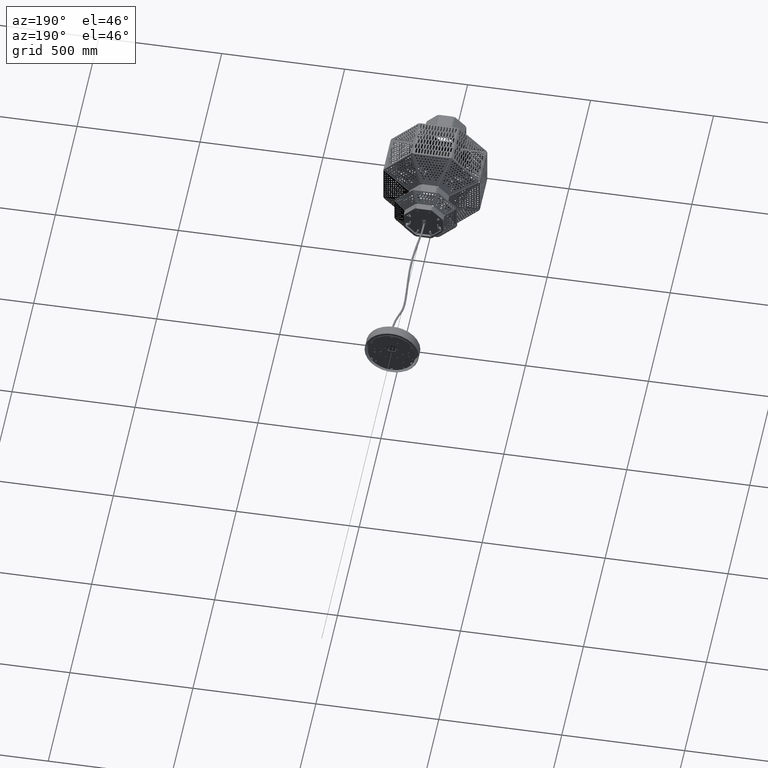
[diagram: clean part render]
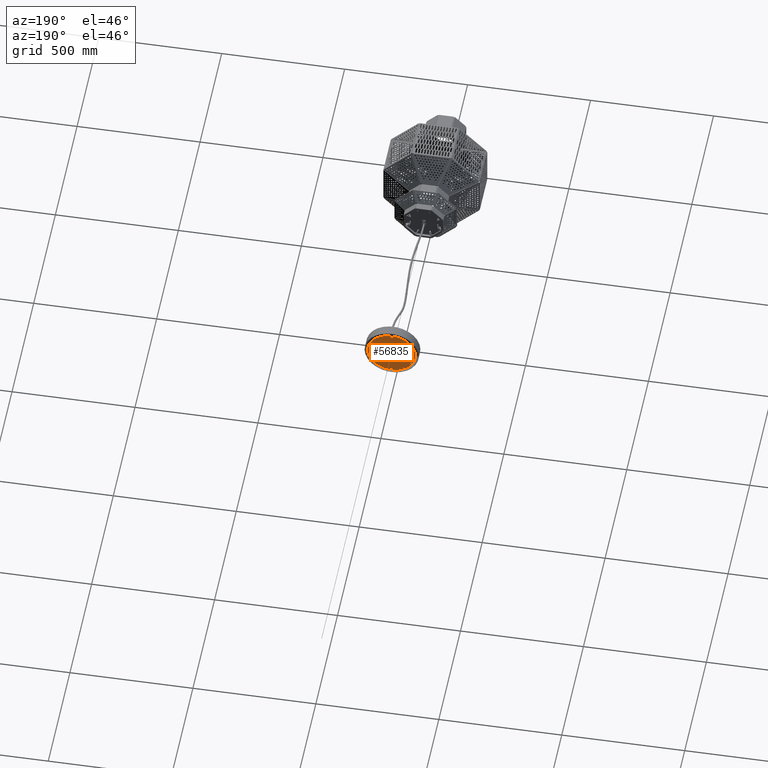
[diagram: same view with one face highlighted and labeled with its STEP entity id]
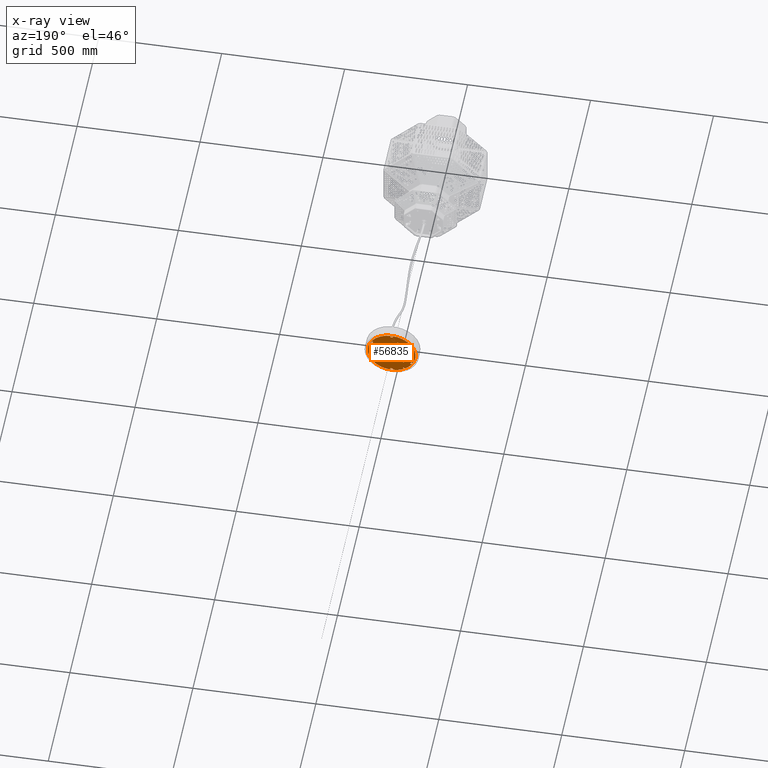
[diagram: x-ray of the same camera — body ghosted, the highlighted face saturated]
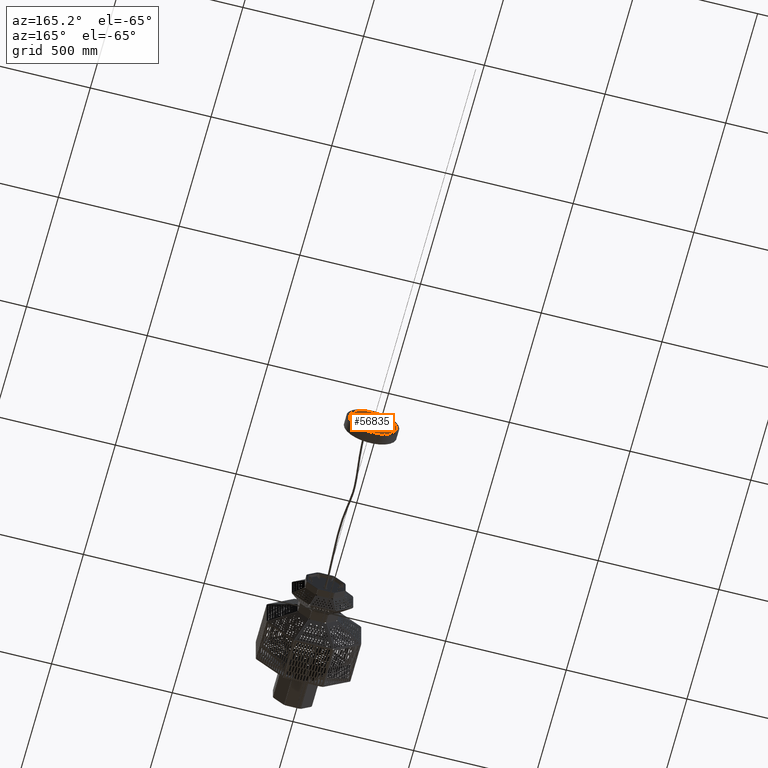
[diagram: same view with one face highlighted and labeled with its STEP entity id]
A machine part, auxiliary view. The second image highlights one B-rep face of the part: STEP entity #56835.
The next image is the same camera in x-ray: the body ghosted, the highlighted face saturated — about 0% of this face is hidden behind the body in this view.
A second angle (auxiliary view) of the same face is appended — the face is thin or edge-on in the first view.
In plain terms, the highlighted planar face has unit normal (-0, -1, -0).
Its self-contained STEP definition (entity closure, byte-faithful):
#442 = DIRECTION ( 'NONE',  ( 0.0000000000000000000, 0.0000000000000000000, 1.000000000000000000 ) ) ;
#444 = CARTESIAN_POINT ( 'NONE',  ( 46.99999999999999300, 0.0000000000000000000, -2.100000000000156400 ) ) ;
#548 = EDGE_CURVE ( 'NONE', #11769, #51437, #7991, .T. ) ;
#1059 = VERTEX_POINT ( 'NONE', #13228 ) ;
#1153 = CARTESIAN_POINT ( 'NONE',  ( 43.00000000000000700, -0.0000000000000000000, 2.099999999999840200 ) ) ;
#1155 = VERTEX_POINT ( 'NONE', #57639 ) ;
#1250 = ORIENTED_EDGE ( 'NONE', *, *, #33535, .T. ) ;
#1397 = CIRCLE ( 'NONE', #39759, 2.499999999999995100 ) ;
#1468 = DIRECTION ( 'NONE',  ( 0.0000000000000000000, 0.0000000000000000000, 1.000000000000000000 ) ) ;
#1530 = DIRECTION ( 'NONE',  ( 0.0000000000000000000, 1.000000000000000000, 0.0000000000000000000 ) ) ;
#1546 = CARTESIAN_POINT ( 'NONE',  ( -25.00000000000000700, 0.0000000000000000000, -60.00000000000000000 ) ) ;
#1621 = ORIENTED_EDGE ( 'NONE', *, *, #35128, .T. ) ;
#1701 = AXIS2_PLACEMENT_3D ( 'NONE', #40626, #53730, #37298 ) ;
#1772 = AXIS2_PLACEMENT_3D ( 'NONE', #16863, #16815, #16741 ) ;
#1852 = EDGE_CURVE ( 'NONE', #43309, #56415, #6621, .T. ) ;
#1855 = EDGE_CURVE ( 'NONE', #7943, #31734, #30839, .T. ) ;
#1885 = AXIS2_PLACEMENT_3D ( 'NONE', #57434, #22527, #9897 ) ;
#1902 = ORIENTED_EDGE ( 'NONE', *, *, #9681, .T. ) ;
#1912 = CARTESIAN_POINT ( 'NONE',  ( 0.0000000000000000000, 0.0000000000000000000, 94.50000000000000000 ) ) ;
#2013 = DIRECTION ( 'NONE',  ( 5.773159728050814000E-014, 0.0000000000000000000, 1.000000000000000000 ) ) ;
#2042 = DIRECTION ( 'NONE',  ( 0.0000000000000000000, 1.000000000000000000, 0.0000000000000000000 ) ) ;
#2068 = DIRECTION ( 'NONE',  ( -0.0000000000000000000, -1.000000000000000000, -0.0000000000000000000 ) ) ;
#2081 = CIRCLE ( 'NONE', #20577, 2.500000000000002200 ) ;
#2152 = AXIS2_PLACEMENT_3D ( 'NONE', #45893, #45693, #45417 ) ;
#2196 = CARTESIAN_POINT ( 'NONE',  ( 0.0000000000000000000, 0.0000000000000000000, 0.0000000000000000000 ) ) ;
#2207 = LINE ( 'NONE', #54302, #15739 ) ;
#2209 = CARTESIAN_POINT ( 'NONE',  ( 20.85965004500304700, 0.0000000000000000000, -24.39518395093600500 ) ) ;
#2295 = VERTEX_POINT ( 'NONE', #48150 ) ;
#2486 = AXIS2_PLACEMENT_3D ( 'NONE', #15407, #15344, #15337 ) ;
#2515 = VERTEX_POINT ( 'NONE', #51043 ) ;
#2516 = CARTESIAN_POINT ( 'NONE',  ( -24.39518395093623900, 0.0000000000000000000, -20.85965004500274100 ) ) ;
#2525 = EDGE_LOOP ( 'NONE', ( #35883, #4495 ) ) ;
#2547 = LINE ( 'NONE', #46342, #23837 ) ;
#2786 = DIRECTION ( 'NONE',  ( 0.0000000000000000000, 0.0000000000000000000, 1.000000000000000000 ) ) ;
#2790 = DIRECTION ( 'NONE',  ( 0.0000000000000000000, 0.0000000000000000000, 1.000000000000000000 ) ) ;
#2894 = AXIS2_PLACEMENT_3D ( 'NONE', #34228, #34116, #34056 ) ;
#3020 = CIRCLE ( 'NONE', #47275, 2.500000000000012400 ) ;
#3241 = EDGE_LOOP ( 'NONE', ( #28089, #1902, #57280, #3300, #45608 ) ) ;
#3289 = EDGE_LOOP ( 'NONE', ( #25569, #21284, #23015, #46593, #12334, #45817 ) ) ;
#3300 = ORIENTED_EDGE ( 'NONE', *, *, #7340, .T. ) ;
#3323 = EDGE_CURVE ( 'NONE', #24513, #27431, #14255, .T. ) ;
#3339 = CIRCLE ( 'NONE', #36157, 94.50000000000000000 ) ;
#3398 = ORIENTED_EDGE ( 'NONE', *, *, #31807, .T. ) ;
#3486 = EDGE_CURVE ( 'NONE', #56415, #28500, #54320, .T. ) ;
#3492 = VERTEX_POINT ( 'NONE', #43817 ) ;
#3552 = LINE ( 'NONE', #15057, #32102 ) ;
#3596 = VERTEX_POINT ( 'NONE', #39211 ) ;
#3698 = VERTEX_POINT ( 'NONE', #33948 ) ;
#3989 = FACE_BOUND ( 'NONE', #41135, .T. ) ;
#4062 = CARTESIAN_POINT ( 'NONE',  ( 10.50000000000000200, 0.0000000000000000000, -9.948259537489676100 ) ) ;
#4064 = CIRCLE ( 'NONE', #47868, 6.999999999999999100 ) ;
#4239 = EDGE_CURVE ( 'NONE', #35457, #34613, #27664, .T. ) ;
#4495 = ORIENTED_EDGE ( 'NONE', *, *, #21020, .T. ) ;
#4563 = ORIENTED_EDGE ( 'NONE', *, *, #41707, .T. ) ;
#4649 = EDGE_LOOP ( 'NONE', ( #20915, #15236 ) ) ;
#4874 = VERTEX_POINT ( 'NONE', #45391 ) ;
#4916 = AXIS2_PLACEMENT_3D ( 'NONE', #35624, #35577, #35503 ) ;
#5004 = EDGE_CURVE ( 'NONE', #26387, #20642, #37643, .T. ) ;
#5019 = CIRCLE ( 'NONE', #19974, 2.500000000000009300 ) ;
#5043 = AXIS2_PLACEMENT_3D ( 'NONE', #32989, #32877, #32856 ) ;
#5111 = CIRCLE ( 'NONE', #57276, 2.500000000000002200 ) ;
#5196 = VERTEX_POINT ( 'NONE', #28965 ) ;
#5216 = CARTESIAN_POINT ( 'NONE',  ( 22.62741699796938000, 0.0000000000000000000, -20.12741699796967900 ) ) ;
#5232 = CARTESIAN_POINT ( 'NONE',  ( 3.210753696629421200, 0.0000000000000000000, -89.44395608575683800 ) ) ;
#5282 = AXIS2_PLACEMENT_3D ( 'NONE', #18349, #18273, #18211 ) ;
#5451 = FACE_BOUND ( 'NONE', #21031, .T. ) ;
#5466 = AXIS2_PLACEMENT_3D ( 'NONE', #59017, #59089, #59104 ) ;
#5496 = DIRECTION ( 'NONE',  ( 0.0000000000000000000, 0.0000000000000000000, 1.000000000000000000 ) ) ;
#5504 = DIRECTION ( 'NONE',  ( 0.0000000000000000000, 1.000000000000000000, 0.0000000000000000000 ) ) ;
#5575 = DIRECTION ( 'NONE',  ( 0.0000000000000000000, 0.0000000000000000000, 1.000000000000000000 ) ) ;
#5620 = CARTESIAN_POINT ( 'NONE',  ( 69.00000000000000000, 0.0000000000000000000, 5.999999999999984000 ) ) ;
#5646 = DIRECTION ( 'NONE',  ( -0.0000000000000000000, -1.000000000000000000, -0.0000000000000000000 ) ) ;
#5689 = CARTESIAN_POINT ( 'NONE',  ( 0.0000000000000000000, 0.0000000000000000000, 0.0000000000000000000 ) ) ;
#5758 = DIRECTION ( 'NONE',  ( 0.0000000000000000000, 0.0000000000000000000, 1.000000000000000000 ) ) ;
#5807 = CARTESIAN_POINT ( 'NONE',  ( -48.99999999999999300, 0.0000000000000000000, 81.50000000000000000 ) ) ;
#5811 = DIRECTION ( 'NONE',  ( 0.0000000000000000000, 1.000000000000000000, 0.0000000000000000000 ) ) ;
#5862 = CARTESIAN_POINT ( 'NONE',  ( 0.0000000000000000000, 0.0000000000000000000, 0.0000000000000000000 ) ) ;
#5893 = VECTOR ( 'NONE', #16823, 1000.000000000000100 ) ;
#6059 = ORIENTED_EDGE ( 'NONE', *, *, #48826, .T. ) ;
#6153 = EDGE_CURVE ( 'NONE', #3492, #37762, #18283, .T. ) ;
#6174 = CIRCLE ( 'NONE', #33174, 94.50000000000000000 ) ;
#6200 = CARTESIAN_POINT ( 'NONE',  ( -3.123504954873830300, 0.0000000000000000000, -89.44547901820907000 ) ) ;
#6242 = EDGE_CURVE ( 'NONE', #8007, #33076, #11154, .T. ) ;
#6403 = ORIENTED_EDGE ( 'NONE', *, *, #43367, .T. ) ;
#6434 = VERTEX_POINT ( 'NONE', #41173 ) ;
#6479 = ORIENTED_EDGE ( 'NONE', *, *, #47342, .F. ) ;
#6507 = AXIS2_PLACEMENT_3D ( 'NONE', #21369, #21239, #21227 ) ;
#6621 = CIRCLE ( 'NONE', #22383, 2.499999999999981300 ) ;
#6683 = CARTESIAN_POINT ( 'NONE',  ( 20.85965004500336700, 0.0000000000000000000, 24.39518395093570300 ) ) ;
#6792 = DIRECTION ( 'NONE',  ( -0.7071067811865522400, 0.0000000000000000000, -0.7071067811865428000 ) ) ;
#6800 = EDGE_LOOP ( 'NONE', ( #6875, #6479, #48051, #27370 ) ) ;
#6853 = DIRECTION ( 'NONE',  ( 0.0000000000000000000, 0.0000000000000000000, 1.000000000000000000 ) ) ;
#6864 = FACE_BOUND ( 'NONE', #16720, .T. ) ;
#6875 = ORIENTED_EDGE ( 'NONE', *, *, #18406, .F. ) ;
#6901 = CIRCLE ( 'NONE', #42318, 2.500000000000002200 ) ;
#6920 = DIRECTION ( 'NONE',  ( 0.0000000000000000000, 1.000000000000000000, 0.0000000000000000000 ) ) ;
#6963 = CARTESIAN_POINT ( 'NONE',  ( -48.49999999999999300, 0.0000000000000000000, 43.00000000000000000 ) ) ;
#7014 = EDGE_CURVE ( 'NONE', #33559, #52859, #43907, .T. ) ;
#7069 = AXIS2_PLACEMENT_3D ( 'NONE', #39684, #39624, #39611 ) ;
#7143 = CARTESIAN_POINT ( 'NONE',  ( -3.123504954873188100, 0.0000000000000000000, 89.44547901820909900 ) ) ;
#7218 = CARTESIAN_POINT ( 'NONE',  ( 3.210753696630098900, 0.0000000000000000000, 91.94395608575682400 ) ) ;
#7298 = VERTEX_POINT ( 'NONE', #51375 ) ;
#7320 = CARTESIAN_POINT ( 'NONE',  ( 17.50000000000000000, 0.0000000000000000000, -35.00000000000000000 ) ) ;
#7338 = CARTESIAN_POINT ( 'NONE',  ( 1.767766952966426200, 0.0000000000000000000, -1.767766952966449500 ) ) ;
#7339 = AXIS2_PLACEMENT_3D ( 'NONE', #38600, #38528, #38479 ) ;
#7340 = EDGE_CURVE ( 'NONE', #3596, #29998, #3020, .T. ) ;
#7584 = CARTESIAN_POINT ( 'NONE',  ( -85.44656033520284700, 0.0000000000000000000, 19.01038794928337000 ) ) ;
#7703 = EDGE_CURVE ( 'NONE', #31167, #1059, #54445, .T. ) ;
#7704 = DIRECTION ( 'NONE',  ( 3.843891905225345800E-016, -0.0000000000000000000, 1.000000000000000000 ) ) ;
#7943 = VERTEX_POINT ( 'NONE', #28391 ) ;
#7952 = CIRCLE ( 'NONE', #16239, 89.50000000000000000 ) ;
#7991 = CIRCLE ( 'NONE', #15898, 94.50000000000000000 ) ;
#8007 = VERTEX_POINT ( 'NONE', #21548 ) ;
#8023 = EDGE_CURVE ( 'NONE', #8343, #3698, #5111, .T. ) ;
#8034 = CARTESIAN_POINT ( 'NONE',  ( -17.49999999999999300, 0.0000000000000000000, 6.726810834144351800E-015 ) ) ;
#8047 = ORIENTED_EDGE ( 'NONE', *, *, #21403, .T. ) ;
#8079 = VECTOR ( 'NONE', #54550, 999.9999999999998900 ) ;
#8259 = FACE_BOUND ( 'NONE', #3241, .T. ) ;
#8343 = VERTEX_POINT ( 'NONE', #58923 ) ;
#8434 = CIRCLE ( 'NONE', #37065, 89.50000000000000000 ) ;
#8529 = CIRCLE ( 'NONE', #22380, 3.000000000000007100 ) ;
#8561 = DIRECTION ( 'NONE',  ( 1.000000000000000000, 0.0000000000000000000, -4.163336342344310200E-015 ) ) ;
#8569 = AXIS2_PLACEMENT_3D ( 'NONE', #27224, #30320, #30256 ) ;
#8591 = ORIENTED_EDGE ( 'NONE', *, *, #6242, .T. ) ;
#8616 = DIRECTION ( 'NONE',  ( 0.0000000000000000000, 1.000000000000000000, 0.0000000000000000000 ) ) ;
#8680 = CARTESIAN_POINT ( 'NONE',  ( 22.62741699796973900, 0.0000000000000000000, 22.62741699796930200 ) ) ;
#8875 = EDGE_LOOP ( 'NONE', ( #8591, #31405, #10773, #53718, #36555 ) ) ;
#8983 = ORIENTED_EDGE ( 'NONE', *, *, #7014, .T. ) ;
#9058 = CARTESIAN_POINT ( 'NONE',  ( 22.62741699796938000, 0.0000000000000000000, -22.62741699796966100 ) ) ;
#9234 = DIRECTION ( 'NONE',  ( 0.0000000000000000000, 1.000000000000000000, 0.0000000000000000000 ) ) ;
#9463 = CIRCLE ( 'NONE', #41530, 2.500000000000002200 ) ;
#9681 = EDGE_CURVE ( 'NONE', #37762, #12784, #46438, .T. ) ;
#9733 = LINE ( 'NONE', #1153, #55517 ) ;
#9897 = DIRECTION ( 'NONE',  ( 0.0000000000000000000, 0.0000000000000000000, 1.000000000000000000 ) ) ;
#9932 = DIRECTION ( 'NONE',  ( 0.0000000000000000000, 1.000000000000000000, 0.0000000000000000000 ) ) ;
#9975 = VERTEX_POINT ( 'NONE', #36938 ) ;
#9999 = DIRECTION ( 'NONE',  ( 0.0000000000000000000, 0.0000000000000000000, 1.000000000000000000 ) ) ;
#10072 = CARTESIAN_POINT ( 'NONE',  ( -81.23117854302078900, 0.0000000000000000000, 43.19138377630292800 ) ) ;
#10085 = VERTEX_POINT ( 'NONE', #12998 ) ;
#10132 = DIRECTION ( 'NONE',  ( 0.0000000000000000000, 0.0000000000000000000, 1.000000000000000000 ) ) ;
#10166 = DIRECTION ( 'NONE',  ( 0.0000000000000000000, 0.0000000000000000000, 1.000000000000000000 ) ) ;
#10175 = DIRECTION ( 'NONE',  ( 0.0000000000000000000, 1.000000000000000000, 0.0000000000000000000 ) ) ;
#10190 = CIRCLE ( 'NONE', #33013, 2.499999999999995100 ) ;
#10200 = DIRECTION ( 'NONE',  ( 0.0000000000000000000, 1.000000000000000000, 0.0000000000000000000 ) ) ;
#10242 = CARTESIAN_POINT ( 'NONE',  ( 10.50000000000000200, 0.0000000000000000000, -16.94825953748967600 ) ) ;
#10294 = CARTESIAN_POINT ( 'NONE',  ( -26.51650429449540500, 0.0000000000000000000, 22.98097038856292700 ) ) ;
#10349 = CARTESIAN_POINT ( 'NONE',  ( 3.123504954873830300, 0.0000000000000000000, 89.44547901820907000 ) ) ;
#10410 = CIRCLE ( 'NONE', #10765, 89.50000000000000000 ) ;
#10445 = DIRECTION ( 'NONE',  ( 0.0000000000000000000, 0.0000000000000000000, 1.000000000000000000 ) ) ;
#10469 = CARTESIAN_POINT ( 'NONE',  ( -48.49999999999999300, 0.0000000000000000000, 45.50000000000000000 ) ) ;
#10489 = DIRECTION ( 'NONE',  ( 0.0000000000000000000, 1.000000000000000000, 0.0000000000000000000 ) ) ;
#10500 = CARTESIAN_POINT ( 'NONE',  ( 63.85452583877437900, 0.0000000000000000000, 56.94491030965009800 ) ) ;
#10503 = EDGE_CURVE ( 'NONE', #41985, #42601, #44846, .T. ) ;
#10651 = AXIS2_PLACEMENT_3D ( 'NONE', #52532, #52520, #52460 ) ;
#10765 = AXIS2_PLACEMENT_3D ( 'NONE', #5689, #5646, #5575 ) ;
#10773 = ORIENTED_EDGE ( 'NONE', *, *, #35572, .T. ) ;
#10779 = AXIS2_PLACEMENT_3D ( 'NONE', #12896, #12818, #12686 ) ;
#10818 = CARTESIAN_POINT ( 'NONE',  ( 43.00000000000000700, -0.0000000000000000000, 2.099999999999840200 ) ) ;
#10840 = AXIS2_PLACEMENT_3D ( 'NONE', #30099, #30044, #29910 ) ;
#10880 = VERTEX_POINT ( 'NONE', #24174 ) ;
#11008 = LINE ( 'NONE', #38942, #21628 ) ;
#11141 = FACE_BOUND ( 'NONE', #12484, .T. ) ;
#11154 = LINE ( 'NONE', #48772, #33965 ) ;
#11232 = CARTESIAN_POINT ( 'NONE',  ( 24.39518395093609400, 0.0000000000000000000, 20.85965004500291200 ) ) ;
#11251 = CIRCLE ( 'NONE', #28611, 2.499999999999995100 ) ;
#11354 = CARTESIAN_POINT ( 'NONE',  ( 63.85452583877437900, 0.0000000000000000000, 54.44491030965010500 ) ) ;
#11519 = DIRECTION ( 'NONE',  ( -1.000000000000000000, 0.0000000000000000000, 3.469446951953611000E-015 ) ) ;
#11769 = VERTEX_POINT ( 'NONE', #54521 ) ;
#11876 = DIRECTION ( 'NONE',  ( 0.0000000000000000000, 0.0000000000000000000, 1.000000000000000000 ) ) ;
#11934 = CARTESIAN_POINT ( 'NONE',  ( 0.0000000000000000000, 0.0000000000000000000, 0.0000000000000000000 ) ) ;
#11950 = DIRECTION ( 'NONE',  ( 0.0000000000000000000, 1.000000000000000000, 0.0000000000000000000 ) ) ;
#12009 = CARTESIAN_POINT ( 'NONE',  ( -81.23117854302140000, 0.0000000000000000000, -43.19138377630176300 ) ) ;
#12061 = EDGE_CURVE ( 'NONE', #28500, #4874, #2547, .T. ) ;
#12259 = DIRECTION ( 'NONE',  ( 0.0000000000000000000, 0.0000000000000000000, 1.000000000000000000 ) ) ;
#12308 = CARTESIAN_POINT ( 'NONE',  ( 78.02042484639200400, 0.0000000000000000000, 48.75257230945356900 ) ) ;
#12322 = DIRECTION ( 'NONE',  ( 0.0000000000000000000, 1.000000000000000000, 0.0000000000000000000 ) ) ;
#12331 = ORIENTED_EDGE ( 'NONE', *, *, #39916, .T. ) ;
#12334 = ORIENTED_EDGE ( 'NONE', *, *, #42558, .T. ) ;
#12383 = CARTESIAN_POINT ( 'NONE',  ( -78.02042484639099500, 0.0000000000000000000, 48.75257230945523900 ) ) ;
#12388 = CIRCLE ( 'NONE', #57082, 2.099999999999981400 ) ;
#12423 = EDGE_LOOP ( 'NONE', ( #46951, #17963 ) ) ;
#12484 = EDGE_LOOP ( 'NONE', ( #53020, #6403 ) ) ;
#12557 = EDGE_CURVE ( 'NONE', #30325, #39665, #34545, .T. ) ;
#12582 = AXIS2_PLACEMENT_3D ( 'NONE', #21063, #21047, #20985 ) ;
#12686 = DIRECTION ( 'NONE',  ( 0.0000000000000000000, 0.0000000000000000000, 1.000000000000000000 ) ) ;
#12755 = EDGE_CURVE ( 'NONE', #43502, #22564, #12388, .T. ) ;
#12784 = VERTEX_POINT ( 'NONE', #27783 ) ;
#12802 = DIRECTION ( 'NONE',  ( 0.0000000000000000000, 0.0000000000000000000, 1.000000000000000000 ) ) ;
#12818 = DIRECTION ( 'NONE',  ( 0.0000000000000000000, 1.000000000000000000, 0.0000000000000000000 ) ) ;
#12845 = VERTEX_POINT ( 'NONE', #25710 ) ;
#12896 = CARTESIAN_POINT ( 'NONE',  ( -25.00000000000000700, 0.0000000000000000000, -60.00000000000000000 ) ) ;
#12998 = CARTESIAN_POINT ( 'NONE',  ( -69.00000000000000000, 0.0000000000000000000, 9.000000000000007100 ) ) ;
#13008 = AXIS2_PLACEMENT_3D ( 'NONE', #18208, #18163, #18149 ) ;
#13064 = CARTESIAN_POINT ( 'NONE',  ( -69.00000000000000000, 0.0000000000000000000, -17.00000000000000700 ) ) ;
#13152 = CARTESIAN_POINT ( 'NONE',  ( 80.14054508678307800, 0.0000000000000000000, 50.07737047003652700 ) ) ;
#13172 = EDGE_LOOP ( 'NONE', ( #48833, #38505, #53123, #20090, #57537 ) ) ;
#13184 = VERTEX_POINT ( 'NONE', #17309 ) ;
#13190 = EDGE_CURVE ( 'NONE', #59053, #10880, #40933, .T. ) ;
#13228 = CARTESIAN_POINT ( 'NONE',  ( 69.00000000000000000, 0.0000000000000000000, -17.00000000000002500 ) ) ;
#13302 = VERTEX_POINT ( 'NONE', #14533 ) ;
#13324 = VERTEX_POINT ( 'NONE', #13534 ) ;
#13401 = CIRCLE ( 'NONE', #19367, 6.999999999999999100 ) ;
#13412 = DIRECTION ( 'NONE',  ( 0.0000000000000000000, 1.000000000000000000, 0.0000000000000000000 ) ) ;
#13440 = VERTEX_POINT ( 'NONE', #10349 ) ;
#13490 = DIRECTION ( 'NONE',  ( 0.0000000000000000000, 0.0000000000000000000, 1.000000000000000000 ) ) ;
#13534 = CARTESIAN_POINT ( 'NONE',  ( -85.44656033520284700, 0.0000000000000000000, 24.01038794928338800 ) ) ;
#13656 = ORIENTED_EDGE ( 'NONE', *, *, #56396, .T. ) ;
#13762 = CARTESIAN_POINT ( 'NONE',  ( -75.90030460599993500, 0.0000000000000000000, 47.42777414887219600 ) ) ;
#14046 = ORIENTED_EDGE ( 'NONE', *, *, #20752, .T. ) ;
#14255 = CIRCLE ( 'NONE', #22499, 97.50000000000000000 ) ;
#14428 = AXIS2_PLACEMENT_3D ( 'NONE', #8680, #8616, #8561 ) ;
#14533 = CARTESIAN_POINT ( 'NONE',  ( 3.298002438386335100, 0.0000000000000000000, 94.44243315330454900 ) ) ;
#14668 = EDGE_LOOP ( 'NONE', ( #1250, #3398, #26057, #52673, #41677 ) ) ;
#14750 = CARTESIAN_POINT ( 'NONE',  ( -10.50000000000000500, 0.0000000000000000000, -42.00000000000000000 ) ) ;
#14764 = EDGE_CURVE ( 'NONE', #24256, #25127, #2081, .T. ) ;
#14942 = AXIS2_PLACEMENT_3D ( 'NONE', #12009, #11950, #11876 ) ;
#14950 = CARTESIAN_POINT ( 'NONE',  ( 17.50000000000000000, 0.0000000000000000000, -16.94825953748967600 ) ) ;
#14981 = CARTESIAN_POINT ( 'NONE',  ( 83.43854752516902800, 0.0000000000000000000, 44.36506268326591100 ) ) ;
#15047 = VERTEX_POINT ( 'NONE', #37128 ) ;
#15057 = CARTESIAN_POINT ( 'NONE',  ( -42.99999999999999300, 0.0000000000000000000, 2.100000000000122700 ) ) ;
#15236 = ORIENTED_EDGE ( 'NONE', *, *, #12557, .T. ) ;
#15337 = DIRECTION ( 'NONE',  ( 0.0000000000000000000, 0.0000000000000000000, 1.000000000000000000 ) ) ;
#15344 = DIRECTION ( 'NONE',  ( 0.0000000000000000000, 1.000000000000000000, 0.0000000000000000000 ) ) ;
#15367 = AXIS2_PLACEMENT_3D ( 'NONE', #54176, #53898, #53815 ) ;
#15394 = LINE ( 'NONE', #55468, #30345 ) ;
#15407 = CARTESIAN_POINT ( 'NONE',  ( -48.99999999999999300, 0.0000000000000000000, 79.00000000000000000 ) ) ;
#15476 = ORIENTED_EDGE ( 'NONE', *, *, #12755, .F. ) ;
#15539 = AXIS2_PLACEMENT_3D ( 'NONE', #30820, #37896, #13490 ) ;
#15562 = ORIENTED_EDGE ( 'NONE', *, *, #4239, .T. ) ;
#15578 = DIRECTION ( 'NONE',  ( 0.0000000000000000000, 0.0000000000000000000, 1.000000000000000000 ) ) ;
#15595 = ORIENTED_EDGE ( 'NONE', *, *, #50068, .F. ) ;
#15739 = VECTOR ( 'NONE', #54287, 1000.000000000000000 ) ;
#15742 = EDGE_CURVE ( 'NONE', #45848, #33395, #4064, .T. ) ;
#15797 = AXIS2_PLACEMENT_3D ( 'NONE', #31493, #31297, #31110 ) ;
#15812 = EDGE_CURVE ( 'NONE', #3698, #29742, #34718, .T. ) ;
#15898 = AXIS2_PLACEMENT_3D ( 'NONE', #40498, #34910, #25141 ) ;
#16075 = EDGE_CURVE ( 'NONE', #12845, #41928, #58343, .T. ) ;
#16089 = VECTOR ( 'NONE', #19847, 1000.000000000000000 ) ;
#16099 = FACE_BOUND ( 'NONE', #20352, .T. ) ;
#16117 = VERTEX_POINT ( 'NONE', #10818 ) ;
#16239 = AXIS2_PLACEMENT_3D ( 'NONE', #11934, #41904, #56344 ) ;
#16248 = DIRECTION ( 'NONE',  ( 0.0000000000000000000, 0.0000000000000000000, 1.000000000000000000 ) ) ;
#16262 = CIRCLE ( 'NONE', #1772, 89.50000000000000000 ) ;
#16276 = CIRCLE ( 'NONE', #20151, 2.499999999999995100 ) ;
#16328 = EDGE_CURVE ( 'NONE', #47924, #37568, #10410, .T. ) ;
#16630 = DIRECTION ( 'NONE',  ( 0.0000000000000000000, 1.000000000000000000, 0.0000000000000000000 ) ) ;
#16657 = EDGE_CURVE ( 'NONE', #6434, #26387, #49702, .T. ) ;
#16720 = EDGE_LOOP ( 'NONE', ( #47092, #15562 ) ) ;
#16741 = DIRECTION ( 'NONE',  ( 2.042810365310288000E-014, 0.0000000000000000000, 1.000000000000000000 ) ) ;
#16764 = EDGE_CURVE ( 'NONE', #10880, #25113, #56148, .T. ) ;
#16815 = DIRECTION ( 'NONE',  ( -0.0000000000000000000, -1.000000000000000000, -0.0000000000000000000 ) ) ;
#16823 = DIRECTION ( 'NONE',  ( -0.7071067811865584500, 0.0000000000000000000, -0.7071067811865365800 ) ) ;
#16824 = CARTESIAN_POINT ( 'NONE',  ( -3.210753696630098900, 0.0000000000000000000, -91.94395608575682400 ) ) ;
#16854 = VERTEX_POINT ( 'NONE', #11354 ) ;
#16863 = CARTESIAN_POINT ( 'NONE',  ( 0.0000000000000000000, 0.0000000000000000000, 0.0000000000000000000 ) ) ;
#16970 = DIRECTION ( 'NONE',  ( 0.7071067811865535700, 0.0000000000000000000, 0.7071067811865415800 ) ) ;
#17054 = CARTESIAN_POINT ( 'NONE',  ( 1.767766952966335300, 0.0000000000000000000, -1.767766952966390200 ) ) ;
#17188 = CARTESIAN_POINT ( 'NONE',  ( -1.767766952966347800, 0.0000000000000000000, 1.767766952966377800 ) ) ;
#17209 = EDGE_CURVE ( 'NONE', #25113, #49338, #20946, .T. ) ;
#17309 = CARTESIAN_POINT ( 'NONE',  ( 69.00000000000000000, 0.0000000000000000000, 8.999999999999991100 ) ) ;
#17412 = ORIENTED_EDGE ( 'NONE', *, *, #19786, .T. ) ;
#17457 = AXIS2_PLACEMENT_3D ( 'NONE', #41668, #41610, #41556 ) ;
#17458 = DIRECTION ( 'NONE',  ( 0.0000000000000000000, 0.0000000000000000000, 1.000000000000000000 ) ) ;
#17515 = FACE_BOUND ( 'NONE', #43208, .T. ) ;
#17532 = DIRECTION ( 'NONE',  ( 0.0000000000000000000, 1.000000000000000000, 0.0000000000000000000 ) ) ;
#17582 = CARTESIAN_POINT ( 'NONE',  ( 0.0000000000000000000, 0.0000000000000000000, 0.0000000000000000000 ) ) ;
#17727 = EDGE_CURVE ( 'NONE', #51963, #43574, #54581, .T. ) ;
#17749 = CARTESIAN_POINT ( 'NONE',  ( 48.00000000000000700, 0.0000000000000000000, 14.49999999999999800 ) ) ;
#17857 = PLANE ( 'NONE',  #55785 ) ;
#17936 = CARTESIAN_POINT ( 'NONE',  ( -85.44656033520284700, 0.0000000000000000000, 21.51038794928338000 ) ) ;
#17963 = ORIENTED_EDGE ( 'NONE', *, *, #54440, .T. ) ;
#18149 = DIRECTION ( 'NONE',  ( 0.0000000000000000000, 0.0000000000000000000, 1.000000000000000000 ) ) ;
#18163 = DIRECTION ( 'NONE',  ( 0.0000000000000000000, 1.000000000000000000, 0.0000000000000000000 ) ) ;
#18208 = CARTESIAN_POINT ( 'NONE',  ( -3.210753696630098900, 0.0000000000000000000, -91.94395608575682400 ) ) ;
#18211 = DIRECTION ( 'NONE',  ( 0.0000000000000000000, 0.0000000000000000000, 1.000000000000000000 ) ) ;
#18273 = DIRECTION ( 'NONE',  ( 0.0000000000000000000, 1.000000000000000000, 0.0000000000000000000 ) ) ;
#18283 = LINE ( 'NONE', #39378, #51944 ) ;
#18303 = CARTESIAN_POINT ( 'NONE',  ( 0.0000000000000000000, 0.0000000000000000000, 0.0000000000000000000 ) ) ;
#18349 = CARTESIAN_POINT ( 'NONE',  ( -78.02042484639167700, 0.0000000000000000000, -48.75257230945411600 ) ) ;
#18403 = VERTEX_POINT ( 'NONE', #20743 ) ;
#18406 = EDGE_CURVE ( 'NONE', #26451, #35058, #46608, .T. ) ;
#18603 = EDGE_CURVE ( 'NONE', #40441, #46162, #37337, .T. ) ;
#18614 = VERTEX_POINT ( 'NONE', #14950 ) ;
#18680 = EDGE_CURVE ( 'NONE', #2515, #15047, #10190, .T. ) ;
#18700 = VERTEX_POINT ( 'NONE', #11232 ) ;
#18742 = EDGE_CURVE ( 'NONE', #2295, #16854, #54523, .T. ) ;
#18754 = CIRCLE ( 'NONE', #10779, 2.500000000000002200 ) ;
#18947 = FACE_BOUND ( 'NONE', #2525, .T. ) ;
#19321 = ORIENTED_EDGE ( 'NONE', *, *, #1855, .T. ) ;
#19367 = AXIS2_PLACEMENT_3D ( 'NONE', #10242, #10175, #10166 ) ;
#19370 = AXIS2_PLACEMENT_3D ( 'NONE', #45749, #45738, #45690 ) ;
#19383 = AXIS2_PLACEMENT_3D ( 'NONE', #10072, #10200, #10132 ) ;
#19421 = ORIENTED_EDGE ( 'NONE', *, *, #42570, .T. ) ;
#19465 = EDGE_CURVE ( 'NONE', #41928, #46382, #7952, .T. ) ;
#19579 = CARTESIAN_POINT ( 'NONE',  ( -10.50000000000000200, 0.0000000000000000000, -9.948259537489677800 ) ) ;
#19592 = ORIENTED_EDGE ( 'NONE', *, *, #43646, .T. ) ;
#19786 = EDGE_CURVE ( 'NONE', #42601, #54107, #2207, .T. ) ;
#19845 = CIRCLE ( 'NONE', #7069, 2.500000000000002200 ) ;
#19847 = DIRECTION ( 'NONE',  ( -1.000000000000000000, 0.0000000000000000000, 0.0000000000000000000 ) ) ;
#19954 = CARTESIAN_POINT ( 'NONE',  ( 0.0000000000000000000, 0.0000000000000000000, -42.00000000000000000 ) ) ;
#19974 = AXIS2_PLACEMENT_3D ( 'NONE', #17936, #30215, #48684 ) ;
#20015 = DIRECTION ( 'NONE',  ( 0.0000000000000000000, 0.0000000000000000000, 1.000000000000000000 ) ) ;
#20025 = DIRECTION ( 'NONE',  ( 0.0000000000000000000, 1.000000000000000000, 0.0000000000000000000 ) ) ;
#20062 = AXIS2_PLACEMENT_3D ( 'NONE', #1546, #1530, #1468 ) ;
#20073 = CARTESIAN_POINT ( 'NONE',  ( 63.85452583877437900, 0.0000000000000000000, 56.94491030965009800 ) ) ;
#20090 = ORIENTED_EDGE ( 'NONE', *, *, #1852, .T. ) ;
#20151 = AXIS2_PLACEMENT_3D ( 'NONE', #52700, #13412, #12802 ) ;
#20245 = CIRCLE ( 'NONE', #17457, 2.500000000000016000 ) ;
#20277 = DIRECTION ( 'NONE',  ( 1.000000000000000000, 0.0000000000000000000, -3.469446951953611000E-015 ) ) ;
#20287 = CARTESIAN_POINT ( 'NONE',  ( 42.99999999999999300, 0.0000000000000000000, -2.100000000000122700 ) ) ;
#20352 = EDGE_LOOP ( 'NONE', ( #13656, #36977, #47799, #23556, #46440 ) ) ;
#20356 = FACE_BOUND ( 'NONE', #4649, .T. ) ;
#20415 = DIRECTION ( 'NONE',  ( 0.0000000000000000000, 0.0000000000000000000, -1.000000000000000000 ) ) ;
#20417 = DIRECTION ( 'NONE',  ( 0.0000000000000000000, 0.0000000000000000000, 1.000000000000000000 ) ) ;
#20418 = ORIENTED_EDGE ( 'NONE', *, *, #3323, .F. ) ;
#20456 = DIRECTION ( 'NONE',  ( 0.0000000000000000000, -1.000000000000000000, 0.0000000000000000000 ) ) ;
#20463 = CARTESIAN_POINT ( 'NONE',  ( -47.00000000000000000, 0.0000000000000000000, 1.760744328116459200E-013 ) ) ;
#20484 = DIRECTION ( 'NONE',  ( 0.0000000000000000000, 1.000000000000000000, 0.0000000000000000000 ) ) ;
#20577 = AXIS2_PLACEMENT_3D ( 'NONE', #45631, #45625, #45572 ) ;
#20612 = CARTESIAN_POINT ( 'NONE',  ( 10.50000000000000200, 0.0000000000000000000, -35.00000000000000000 ) ) ;
#20633 = VECTOR ( 'NONE', #30018, 1000.000000000000000 ) ;
#20642 = VERTEX_POINT ( 'NONE', #31040 ) ;
#20654 = DIRECTION ( 'NONE',  ( 0.0000000000000000000, 1.000000000000000000, 0.0000000000000000000 ) ) ;
#20670 = ORIENTED_EDGE ( 'NONE', *, *, #31441, .T. ) ;
#20707 = CARTESIAN_POINT ( 'NONE',  ( -48.99999999999999300, 0.0000000000000000000, 79.00000000000000000 ) ) ;
#20743 = CARTESIAN_POINT ( 'NONE',  ( -69.00000000000000000, 0.0000000000000000000, 2.999999999999992500 ) ) ;
#20752 = EDGE_CURVE ( 'NONE', #52859, #36909, #57121, .T. ) ;
#20915 = ORIENTED_EDGE ( 'NONE', *, *, #28250, .T. ) ;
#20946 = CIRCLE ( 'NONE', #15367, 2.500000000000012400 ) ;
#20985 = DIRECTION ( 'NONE',  ( 0.0000000000000000000, 0.0000000000000000000, 1.000000000000000000 ) ) ;
#21010 = EDGE_CURVE ( 'NONE', #1155, #9975, #42723, .T. ) ;
#21020 = EDGE_CURVE ( 'NONE', #16854, #2295, #41299, .T. ) ;
#21031 = EDGE_LOOP ( 'NONE', ( #46451, #51251, #8983, #14046, #1621 ) ) ;
#21047 = DIRECTION ( 'NONE',  ( 0.0000000000000000000, 1.000000000000000000, 0.0000000000000000000 ) ) ;
#21063 = CARTESIAN_POINT ( 'NONE',  ( -69.00000000000000000, 0.0000000000000000000, 6.000000000000000000 ) ) ;
#21090 = EDGE_CURVE ( 'NONE', #46382, #25422, #50633, .T. ) ;
#21227 = DIRECTION ( 'NONE',  ( 0.0000000000000000000, 0.0000000000000000000, 1.000000000000000000 ) ) ;
#21238 = CARTESIAN_POINT ( 'NONE',  ( 42.99999999999999300, 0.0000000000000000000, -2.100000000000122700 ) ) ;
#21239 = DIRECTION ( 'NONE',  ( 0.0000000000000000000, 1.000000000000000000, 0.0000000000000000000 ) ) ;
#21284 = ORIENTED_EDGE ( 'NONE', *, *, #8023, .T. ) ;
#21369 = CARTESIAN_POINT ( 'NONE',  ( 3.210753696629421200, 0.0000000000000000000, -91.94395608575683800 ) ) ;
#21403 = EDGE_CURVE ( 'NONE', #54107, #18614, #13401, .T. ) ;
#21431 = DIRECTION ( 'NONE',  ( -1.000000000000000000, 0.0000000000000000000, 1.110223024625149400E-014 ) ) ;
#21548 = CARTESIAN_POINT ( 'NONE',  ( -22.98097038856263200, 0.0000000000000000000, 26.51650429449567200 ) ) ;
#21619 = DIRECTION ( 'NONE',  ( 0.0000000000000000000, 1.000000000000000000, 0.0000000000000000000 ) ) ;
#21628 = VECTOR ( 'NONE', #38619, 1000.000000000000000 ) ;
#21704 = EDGE_LOOP ( 'NONE', ( #42548, #19592 ) ) ;
#21748 = EDGE_LOOP ( 'NONE', ( #12331, #50891, #28472, #20670, #19321 ) ) ;
#21753 = FACE_BOUND ( 'NONE', #51076, .T. ) ;
#21972 = CIRCLE ( 'NONE', #44963, 2.500000000000012400 ) ;
#22013 = CARTESIAN_POINT ( 'NONE',  ( -22.62741699796989500, 0.0000000000000000000, -22.62741699796914600 ) ) ;
#22117 = EDGE_CURVE ( 'NONE', #41276, #16117, #9733, .T. ) ;
#22316 = EDGE_CURVE ( 'NONE', #7298, #23385, #6174, .T. ) ;
#22380 = AXIS2_PLACEMENT_3D ( 'NONE', #5620, #5504, #5496 ) ;
#22383 = AXIS2_PLACEMENT_3D ( 'NONE', #9058, #9932, #9999 ) ;
#22403 = EDGE_CURVE ( 'NONE', #18614, #45848, #15394, .T. ) ;
#22493 = EDGE_CURVE ( 'NONE', #4874, #52465, #58306, .T. ) ;
#22499 = AXIS2_PLACEMENT_3D ( 'NONE', #53380, #53306, #53263 ) ;
#22527 = DIRECTION ( 'NONE',  ( 0.0000000000000000000, 1.000000000000000000, 0.0000000000000000000 ) ) ;
#22564 = VERTEX_POINT ( 'NONE', #51349 ) ;
#22676 = DIRECTION ( 'NONE',  ( 0.0000000000000000000, 0.0000000000000000000, 1.000000000000000000 ) ) ;
#22711 = ORIENTED_EDGE ( 'NONE', *, *, #43280, .T. ) ;
#22710 = CARTESIAN_POINT ( 'NONE',  ( 81.23117854302046200, 0.0000000000000000000, -40.69138377630349600 ) ) ;
#22787 = DIRECTION ( 'NONE',  ( 0.0000000000000000000, 1.000000000000000000, 0.0000000000000000000 ) ) ;
#22801 = ORIENTED_EDGE ( 'NONE', *, *, #36160, .T. ) ;
#22847 = DIRECTION ( 'NONE',  ( 0.0000000000000000000, 0.0000000000000000000, 1.000000000000000000 ) ) ;
#22863 = DIRECTION ( 'NONE',  ( 0.0000000000000000000, 1.000000000000000000, 0.0000000000000000000 ) ) ;
#22910 = CARTESIAN_POINT ( 'NONE',  ( 69.00000000000000000, 0.0000000000000000000, 5.999999999999984000 ) ) ;
#23015 = ORIENTED_EDGE ( 'NONE', *, *, #15812, .T. ) ;
#23062 = CARTESIAN_POINT ( 'NONE',  ( 81.23117854302169900, 0.0000000000000000000, 43.19138377630119400 ) ) ;
#23210 = CARTESIAN_POINT ( 'NONE',  ( 75.90030460600090100, 0.0000000000000000000, 47.42777414887058300 ) ) ;
#23291 = ORIENTED_EDGE ( 'NONE', *, *, #48915, .T. ) ;
#23385 = VERTEX_POINT ( 'NONE', #28464 ) ;
#23556 = ORIENTED_EDGE ( 'NONE', *, *, #19465, .T. ) ;
#23605 = VECTOR ( 'NONE', #20277, 1000.000000000000000 ) ;
#23817 = EDGE_LOOP ( 'NONE', ( #54504, #19421 ) ) ;
#23837 = VECTOR ( 'NONE', #46474, 999.9999999999998900 ) ;
#23913 = CIRCLE ( 'NONE', #10840, 2.099999999999980500 ) ;
#23934 = EDGE_CURVE ( 'NONE', #58000, #40666, #18754, .T. ) ;
#24035 = DIRECTION ( 'NONE',  ( 0.0000000000000000000, 1.000000000000000000, 0.0000000000000000000 ) ) ;
#24174 = CARTESIAN_POINT ( 'NONE',  ( 22.98097038856303000, 0.0000000000000000000, 26.51650429449533100 ) ) ;
#24226 = DIRECTION ( 'NONE',  ( 0.0000000000000000000, 0.0000000000000000000, 1.000000000000000000 ) ) ;
#24256 = VERTEX_POINT ( 'NONE', #5232 ) ;
#24266 = ORIENTED_EDGE ( 'NONE', *, *, #26492, .T. ) ;
#24288 = DIRECTION ( 'NONE',  ( 0.0000000000000000000, 1.000000000000000000, 0.0000000000000000000 ) ) ;
#24303 = CARTESIAN_POINT ( 'NONE',  ( -17.50000000000000400, 0.0000000000000000000, -35.00000000000000000 ) ) ;
#24334 = CARTESIAN_POINT ( 'NONE',  ( 48.00000000000000700, 0.0000000000000000000, 19.50000000000000400 ) ) ;
#24418 = CARTESIAN_POINT ( 'NONE',  ( -69.00000000000000000, 0.0000000000000000000, -14.00000000000000000 ) ) ;
#24513 = VERTEX_POINT ( 'NONE', #57523 ) ;
#24545 = CIRCLE ( 'NONE', #1701, 2.500000000000009300 ) ;
#24614 = CARTESIAN_POINT ( 'NONE',  ( 0.0000000000000000000, 0.0000000000000000000, 89.50000000000000000 ) ) ;
#25113 = VERTEX_POINT ( 'NONE', #55904 ) ;
#25127 = VERTEX_POINT ( 'NONE', #56024 ) ;
#25141 = DIRECTION ( 'NONE',  ( 0.0000000000000000000, 0.0000000000000000000, 1.000000000000000000 ) ) ;
#25183 = CIRCLE ( 'NONE', #38381, 94.50000000000000000 ) ;
#25405 = CARTESIAN_POINT ( 'NONE',  ( -83.43854752516807600, 0.0000000000000000000, 44.36506268326768800 ) ) ;
#25422 = VERTEX_POINT ( 'NONE', #48657 ) ;
#25556 = CARTESIAN_POINT ( 'NONE',  ( -69.00000000000000000, 0.0000000000000000000, -10.99999999999999300 ) ) ;
#25569 = ORIENTED_EDGE ( 'NONE', *, *, #54625, .T. ) ;
#25710 = CARTESIAN_POINT ( 'NONE',  ( -81.23117854302140000, 0.0000000000000000000, -40.69138377630177000 ) ) ;
#26057 = ORIENTED_EDGE ( 'NONE', *, *, #16657, .T. ) ;
#26115 = EDGE_CURVE ( 'NONE', #35058, #41276, #23913, .T. ) ;
#26387 = VERTEX_POINT ( 'NONE', #23210 ) ;
#26451 = VERTEX_POINT ( 'NONE', #21238 ) ;
#26492 = EDGE_CURVE ( 'NONE', #33395, #26703, #40369, .T. ) ;
#26703 = VERTEX_POINT ( 'NONE', #14750 ) ;
#27075 = DIRECTION ( 'NONE',  ( 0.0000000000000000000, 0.0000000000000000000, 1.000000000000000000 ) ) ;
#27108 = DIRECTION ( 'NONE',  ( 0.0000000000000000000, -0.0000000000000000000, 1.000000000000000000 ) ) ;
#27144 = DIRECTION ( 'NONE',  ( 0.0000000000000000000, 1.000000000000000000, 0.0000000000000000000 ) ) ;
#27224 = CARTESIAN_POINT ( 'NONE',  ( 0.0000000000000000000, 0.0000000000000000000, 0.0000000000000000000 ) ) ;
#27263 = DIRECTION ( 'NONE',  ( 0.0000000000000000000, 0.0000000000000000000, 1.000000000000000000 ) ) ;
#27267 = CARTESIAN_POINT ( 'NONE',  ( 81.23117854302046200, 0.0000000000000000000, -43.19138377630349600 ) ) ;
#27302 = DIRECTION ( 'NONE',  ( 0.0000000000000000000, 0.0000000000000000000, -1.000000000000000000 ) ) ;
#27370 = ORIENTED_EDGE ( 'NONE', *, *, #26115, .F. ) ;
#27371 = VERTEX_POINT ( 'NONE', #13762 ) ;
#27375 = DIRECTION ( 'NONE',  ( 0.0000000000000000000, -1.000000000000000000, 0.0000000000000000000 ) ) ;
#27390 = CARTESIAN_POINT ( 'NONE',  ( -43.00000000000000000, 0.0000000000000000000, 1.630640067418198700E-013 ) ) ;
#27431 = VERTEX_POINT ( 'NONE', #53264 ) ;
#27472 = AXIS2_PLACEMENT_3D ( 'NONE', #41890, #54542, #2786 ) ;
#27593 = CIRCLE ( 'NONE', #51583, 3.000000000000007100 ) ;
#27664 = CIRCLE ( 'NONE', #55981, 2.500000000000002200 ) ;
#27684 = CIRCLE ( 'NONE', #29405, 2.500000000000002200 ) ;
#27783 = CARTESIAN_POINT ( 'NONE',  ( -20.85965004500353700, 0.0000000000000000000, -24.39518395093555700 ) ) ;
#28000 = CIRCLE ( 'NONE', #4916, 97.50000000000000000 ) ;
#28089 = ORIENTED_EDGE ( 'NONE', *, *, #6153, .T. ) ;
#28193 = FACE_BOUND ( 'NONE', #21748, .T. ) ;
#28250 = EDGE_CURVE ( 'NONE', #39665, #30325, #9463, .T. ) ;
#28335 = AXIS2_PLACEMENT_3D ( 'NONE', #39288, #39281, #39200 ) ;
#28391 = CARTESIAN_POINT ( 'NONE',  ( -79.02380956087346000, 0.0000000000000000000, 42.01770486933816800 ) ) ;
#28402 = CIRCLE ( 'NONE', #38800, 6.999999999999999100 ) ;
#28464 = CARTESIAN_POINT ( 'NONE',  ( 80.14054508678168500, 0.0000000000000000000, -50.07737047003880100 ) ) ;
#28472 = ORIENTED_EDGE ( 'NONE', *, *, #44606, .T. ) ;
#28500 = VERTEX_POINT ( 'NONE', #40782 ) ;
#28611 = AXIS2_PLACEMENT_3D ( 'NONE', #23062, #22787, #22676 ) ;
#28880 = EDGE_LOOP ( 'NONE', ( #20418, #45718 ) ) ;
#28965 = CARTESIAN_POINT ( 'NONE',  ( 3.123504954873188100, 0.0000000000000000000, -89.44547901820909900 ) ) ;
#29405 = AXIS2_PLACEMENT_3D ( 'NONE', #20707, #20654, #27263 ) ;
#29628 = FACE_BOUND ( 'NONE', #6800, .T. ) ;
#29742 = VERTEX_POINT ( 'NONE', #6200 ) ;
#29749 = EDGE_CURVE ( 'NONE', #47735, #13184, #8529, .T. ) ;
#29910 = DIRECTION ( 'NONE',  ( 0.0000000000000000000, 0.0000000000000000000, 1.000000000000000000 ) ) ;
#29998 = VERTEX_POINT ( 'NONE', #58397 ) ;
#30018 = DIRECTION ( 'NONE',  ( -0.7071067811865440200, 0.0000000000000000000, 0.7071067811865511300 ) ) ;
#30044 = DIRECTION ( 'NONE',  ( 0.0000000000000000000, -1.000000000000000000, 0.0000000000000000000 ) ) ;
#30086 = VERTEX_POINT ( 'NONE', #24303 ) ;
#30099 = CARTESIAN_POINT ( 'NONE',  ( 47.00000000000000000, 0.0000000000000000000, -1.760744328116459200E-013 ) ) ;
#30215 = DIRECTION ( 'NONE',  ( 0.0000000000000000000, 1.000000000000000000, 0.0000000000000000000 ) ) ;
#30252 = EDGE_LOOP ( 'NONE', ( #43750, #36523, #48955, #31355, #45560 ) ) ;
#30256 = DIRECTION ( 'NONE',  ( 2.664535259100375700E-014, 0.0000000000000000000, 1.000000000000000000 ) ) ;
#30320 = DIRECTION ( 'NONE',  ( -0.0000000000000000000, -1.000000000000000000, -0.0000000000000000000 ) ) ;
#30325 = VERTEX_POINT ( 'NONE', #17749 ) ;
#30345 = VECTOR ( 'NONE', #55395, 1000.000000000000000 ) ;
#30466 = EDGE_CURVE ( 'NONE', #20642, #34550, #55786, .T. ) ;
#30715 = CARTESIAN_POINT ( 'NONE',  ( 0.0000000000000000000, 0.0000000000000000000, 0.0000000000000000000 ) ) ;
#30795 = CARTESIAN_POINT ( 'NONE',  ( 69.00000000000000000, 0.0000000000000000000, 2.999999999999975600 ) ) ;
#30820 = CARTESIAN_POINT ( 'NONE',  ( -69.00000000000000000, 0.0000000000000000000, 6.000000000000000000 ) ) ;
#30834 = CARTESIAN_POINT ( 'NONE',  ( -25.00000000000000700, 0.0000000000000000000, -62.50000000000000000 ) ) ;
#30839 = CIRCLE ( 'NONE', #19383, 2.499999999999995100 ) ;
#31040 = CARTESIAN_POINT ( 'NONE',  ( 78.02042484639200400, 0.0000000000000000000, 51.25257230945356200 ) ) ;
#31085 = FACE_BOUND ( 'NONE', #13172, .T. ) ;
#31110 = DIRECTION ( 'NONE',  ( 0.0000000000000000000, 0.0000000000000000000, 1.000000000000000000 ) ) ;
#31133 = VECTOR ( 'NONE', #7704, 1000.000000000000000 ) ;
#31167 = VERTEX_POINT ( 'NONE', #42895 ) ;
#31297 = DIRECTION ( 'NONE',  ( 0.0000000000000000000, 1.000000000000000000, 0.0000000000000000000 ) ) ;
#31355 = ORIENTED_EDGE ( 'NONE', *, *, #16764, .T. ) ;
#31405 = ORIENTED_EDGE ( 'NONE', *, *, #57700, .T. ) ;
#31441 = EDGE_CURVE ( 'NONE', #27371, #7943, #8434, .T. ) ;
#31493 = CARTESIAN_POINT ( 'NONE',  ( 81.23117854302046200, 0.0000000000000000000, -43.19138377630349600 ) ) ;
#31734 = VERTEX_POINT ( 'NONE', #25405 ) ;
#31807 = EDGE_CURVE ( 'NONE', #56111, #6434, #11251, .T. ) ;
#32102 = VECTOR ( 'NONE', #11519, 1000.000000000000000 ) ;
#32515 = FACE_BOUND ( 'NONE', #21704, .T. ) ;
#32789 = LINE ( 'NONE', #57420, #20633 ) ;
#32856 = DIRECTION ( 'NONE',  ( 0.0000000000000000000, 0.0000000000000000000, 1.000000000000000000 ) ) ;
#32877 = DIRECTION ( 'NONE',  ( 0.0000000000000000000, 1.000000000000000000, 0.0000000000000000000 ) ) ;
#32989 = CARTESIAN_POINT ( 'NONE',  ( 48.00000000000000700, 0.0000000000000000000, 17.00000000000000000 ) ) ;
#33013 = AXIS2_PLACEMENT_3D ( 'NONE', #12383, #12322, #12259 ) ;
#33076 = VERTEX_POINT ( 'NONE', #51397 ) ;
#33138 = ORIENTED_EDGE ( 'NONE', *, *, #548, .T. ) ;
#33174 = AXIS2_PLACEMENT_3D ( 'NONE', #30715, #59203, #57555 ) ;
#33211 = DIRECTION ( 'NONE',  ( -1.000000000000000000, 0.0000000000000000000, 1.110223024625151000E-014 ) ) ;
#33249 = DIRECTION ( 'NONE',  ( 0.0000000000000000000, 1.000000000000000000, 0.0000000000000000000 ) ) ;
#33257 = CARTESIAN_POINT ( 'NONE',  ( -24.74873734152957300, 0.0000000000000000000, -24.74873734152875200 ) ) ;
#33395 = VERTEX_POINT ( 'NONE', #42533 ) ;
#33535 = EDGE_CURVE ( 'NONE', #34550, #56111, #45991, .T. ) ;
#33559 = VERTEX_POINT ( 'NONE', #37897 ) ;
#33948 = CARTESIAN_POINT ( 'NONE',  ( -3.210753696630098900, 0.0000000000000000000, -89.44395608575682400 ) ) ;
#33965 = VECTOR ( 'NONE', #48706, 1000.000000000000000 ) ;
#34011 = CIRCLE ( 'NONE', #14428, 2.500000000000016000 ) ;
#34056 = DIRECTION ( 'NONE',  ( 0.0000000000000000000, 0.0000000000000000000, 1.000000000000000000 ) ) ;
#34081 = AXIS2_PLACEMENT_3D ( 'NONE', #38595, #38539, #38523 ) ;
#34116 = DIRECTION ( 'NONE',  ( 0.0000000000000000000, 1.000000000000000000, 0.0000000000000000000 ) ) ;
#34180 = DIRECTION ( 'NONE',  ( 0.0000000000000000000, 0.0000000000000000000, 1.000000000000000000 ) ) ;
#34228 = CARTESIAN_POINT ( 'NONE',  ( -48.49999999999999300, 0.0000000000000000000, 43.00000000000000000 ) ) ;
#34260 = DIRECTION ( 'NONE',  ( -0.0000000000000000000, -1.000000000000000000, -0.0000000000000000000 ) ) ;
#34274 = DIRECTION ( 'NONE',  ( 0.0000000000000000000, 1.000000000000000000, 0.0000000000000000000 ) ) ;
#34341 = CARTESIAN_POINT ( 'NONE',  ( 0.0000000000000000000, 0.0000000000000000000, 0.0000000000000000000 ) ) ;
#34545 = CIRCLE ( 'NONE', #5043, 2.500000000000002200 ) ;
#34550 = VERTEX_POINT ( 'NONE', #13152 ) ;
#34552 = VERTEX_POINT ( 'NONE', #13064 ) ;
#34579 = EDGE_LOOP ( 'NONE', ( #45977, #4563 ) ) ;
#34613 = VERTEX_POINT ( 'NONE', #10469 ) ;
#34630 = EDGE_LOOP ( 'NONE', ( #33138, #6059, #23291, #22711, #57520, #48541 ) ) ;
#34646 = CARTESIAN_POINT ( 'NONE',  ( -25.00000000000000700, 0.0000000000000000000, -57.49999999999999300 ) ) ;
#34718 = CIRCLE ( 'NONE', #13008, 2.500000000000002200 ) ;
#34773 = AXIS2_PLACEMENT_3D ( 'NONE', #2196, #2068, #2013 ) ;
#34910 = DIRECTION ( 'NONE',  ( 0.0000000000000000000, 1.000000000000000000, 0.0000000000000000000 ) ) ;
#35003 = CIRCLE ( 'NONE', #12582, 3.000000000000008000 ) ;
#35058 = VERTEX_POINT ( 'NONE', #444 ) ;
#35128 = EDGE_CURVE ( 'NONE', #36909, #7298, #54379, .T. ) ;
#35457 = VERTEX_POINT ( 'NONE', #52495 ) ;
#35503 = DIRECTION ( 'NONE',  ( 0.0000000000000000000, 0.0000000000000000000, 1.000000000000000000 ) ) ;
#35572 = EDGE_CURVE ( 'NONE', #52622, #51963, #32789, .T. ) ;
#35577 = DIRECTION ( 'NONE',  ( 0.0000000000000000000, 1.000000000000000000, 0.0000000000000000000 ) ) ;
#35624 = CARTESIAN_POINT ( 'NONE',  ( 0.0000000000000000000, 0.0000000000000000000, 0.0000000000000000000 ) ) ;
#35684 = CARTESIAN_POINT ( 'NONE',  ( 79.02380956087316100, 0.0000000000000000000, -42.01770486933871500 ) ) ;
#35883 = ORIENTED_EDGE ( 'NONE', *, *, #18742, .T. ) ;
#36157 = AXIS2_PLACEMENT_3D ( 'NONE', #58936, #59020, #59066 ) ;
#36160 = EDGE_CURVE ( 'NONE', #26703, #30086, #28402, .T. ) ;
#36210 = ORIENTED_EDGE ( 'NONE', *, *, #56560, .T. ) ;
#36287 = CARTESIAN_POINT ( 'NONE',  ( -17.49999999999999600, 0.0000000000000000000, -16.94825953748967600 ) ) ;
#36326 = EDGE_CURVE ( 'NONE', #37568, #11769, #19845, .T. ) ;
#36523 = ORIENTED_EDGE ( 'NONE', *, *, #37495, .T. ) ;
#36529 = EDGE_CURVE ( 'NONE', #34613, #35457, #46355, .T. ) ;
#36555 = ORIENTED_EDGE ( 'NONE', *, *, #49820, .T. ) ;
#36895 = EDGE_CURVE ( 'NONE', #13184, #47735, #27593, .T. ) ;
#36900 = CIRCLE ( 'NONE', #48828, 94.50000000000000000 ) ;
#36909 = VERTEX_POINT ( 'NONE', #22710 ) ;
#36938 = CARTESIAN_POINT ( 'NONE',  ( -47.00000000000000700, -0.0000000000000000000, -2.099999999999824200 ) ) ;
#36977 = ORIENTED_EDGE ( 'NONE', *, *, #43463, .T. ) ;
#37065 = AXIS2_PLACEMENT_3D ( 'NONE', #34341, #34260, #34180 ) ;
#37128 = CARTESIAN_POINT ( 'NONE',  ( -78.02042484639099500, 0.0000000000000000000, 51.25257230945523200 ) ) ;
#37152 = AXIS2_PLACEMENT_3D ( 'NONE', #56665, #56740, #56804 ) ;
#37298 = DIRECTION ( 'NONE',  ( 0.0000000000000000000, 0.0000000000000000000, 1.000000000000000000 ) ) ;
#37337 = CIRCLE ( 'NONE', #2486, 2.500000000000002200 ) ;
#37349 = CARTESIAN_POINT ( 'NONE',  ( -83.43854752516870100, 0.0000000000000000000, -44.36506268326649400 ) ) ;
#37468 = CIRCLE ( 'NONE', #19370, 2.500000000000012400 ) ;
#37495 = EDGE_CURVE ( 'NONE', #18700, #59053, #34011, .T. ) ;
#37528 = EDGE_CURVE ( 'NONE', #30086, #41985, #44759, .T. ) ;
#37568 = VERTEX_POINT ( 'NONE', #7143 ) ;
#37643 = CIRCLE ( 'NONE', #58657, 2.499999999999995100 ) ;
#37762 = VERTEX_POINT ( 'NONE', #2516 ) ;
#37896 = DIRECTION ( 'NONE',  ( 0.0000000000000000000, 1.000000000000000000, 0.0000000000000000000 ) ) ;
#37897 = CARTESIAN_POINT ( 'NONE',  ( 75.90030460599956500, 0.0000000000000000000, -47.42777414887272200 ) ) ;
#38065 = VECTOR ( 'NONE', #16970, 1000.000000000000000 ) ;
#38159 = CARTESIAN_POINT ( 'NONE',  ( -79.02380956087405700, 0.0000000000000000000, -42.01770486933705200 ) ) ;
#38220 = EDGE_CURVE ( 'NONE', #23385, #33559, #16276, .T. ) ;
#38251 = ORIENTED_EDGE ( 'NONE', *, *, #23934, .T. ) ;
#38381 = AXIS2_PLACEMENT_3D ( 'NONE', #38932, #24035, #442 ) ;
#38479 = DIRECTION ( 'NONE',  ( 0.0000000000000000000, 0.0000000000000000000, 1.000000000000000000 ) ) ;
#38505 = ORIENTED_EDGE ( 'NONE', *, *, #22493, .T. ) ;
#38523 = DIRECTION ( 'NONE',  ( 0.0000000000000000000, 0.0000000000000000000, 1.000000000000000000 ) ) ;
#38528 = DIRECTION ( 'NONE',  ( 0.0000000000000000000, 1.000000000000000000, 0.0000000000000000000 ) ) ;
#38539 = DIRECTION ( 'NONE',  ( 0.0000000000000000000, 1.000000000000000000, 0.0000000000000000000 ) ) ;
#38595 = CARTESIAN_POINT ( 'NONE',  ( -78.02042484639099500, 0.0000000000000000000, 48.75257230945523900 ) ) ;
#38600 = CARTESIAN_POINT ( 'NONE',  ( 0.0000000000000000000, 0.0000000000000000000, 0.0000000000000000000 ) ) ;
#38619 = DIRECTION ( 'NONE',  ( 1.000000000000000000, -0.0000000000000000000, -4.011548038196369600E-015 ) ) ;
#38774 = ORIENTED_EDGE ( 'NONE', *, *, #37528, .T. ) ;
#38800 = AXIS2_PLACEMENT_3D ( 'NONE', #44570, #44496, #44435 ) ;
#38932 = CARTESIAN_POINT ( 'NONE',  ( 0.0000000000000000000, 0.0000000000000000000, 0.0000000000000000000 ) ) ;
#38942 = CARTESIAN_POINT ( 'NONE',  ( -43.00000000000000700, -0.0000000000000000000, -2.099999999999840200 ) ) ;
#38963 = FACE_OUTER_BOUND ( 'NONE', #28880, .T. ) ;
#39085 = DIRECTION ( 'NONE',  ( 0.7071067811865573400, 0.0000000000000000000, 0.7071067811865378000 ) ) ;
#39200 = DIRECTION ( 'NONE',  ( 0.0000000000000000000, 0.0000000000000000000, 1.000000000000000000 ) ) ;
#39211 = CARTESIAN_POINT ( 'NONE',  ( -22.98097038856321100, 0.0000000000000000000, -26.51650429449516700 ) ) ;
#39222 = DIRECTION ( 'NONE',  ( 0.0000000000000000000, 0.0000000000000000000, 1.000000000000000000 ) ) ;
#39281 = DIRECTION ( 'NONE',  ( 0.0000000000000000000, 1.000000000000000000, 0.0000000000000000000 ) ) ;
#39288 = CARTESIAN_POINT ( 'NONE',  ( -24.74873734152901200, 0.0000000000000000000, 24.74873734152931000 ) ) ;
#39297 = DIRECTION ( 'NONE',  ( 0.0000000000000000000, 1.000000000000000000, 0.0000000000000000000 ) ) ;
#39369 = CARTESIAN_POINT ( 'NONE',  ( 78.02042484639200400, 0.0000000000000000000, 48.75257230945356900 ) ) ;
#39378 = CARTESIAN_POINT ( 'NONE',  ( -1.767766952966413700, 0.0000000000000000000, 1.767766952966461900 ) ) ;
#39569 = DIRECTION ( 'NONE',  ( 0.0000000000000000000, 0.0000000000000000000, 1.000000000000000000 ) ) ;
#39611 = DIRECTION ( 'NONE',  ( 0.0000000000000000000, 0.0000000000000000000, 1.000000000000000000 ) ) ;
#39612 = DIRECTION ( 'NONE',  ( 0.0000000000000000000, -1.000000000000000000, 0.0000000000000000000 ) ) ;
#39620 = CARTESIAN_POINT ( 'NONE',  ( 43.00000000000000000, 0.0000000000000000000, -1.630640067418198700E-013 ) ) ;
#39624 = DIRECTION ( 'NONE',  ( 0.0000000000000000000, 1.000000000000000000, 0.0000000000000000000 ) ) ;
#39665 = VERTEX_POINT ( 'NONE', #24334 ) ;
#39684 = CARTESIAN_POINT ( 'NONE',  ( -3.210753696629421200, 0.0000000000000000000, 91.94395608575683800 ) ) ;
#39759 = AXIS2_PLACEMENT_3D ( 'NONE', #56137, #9234, #15578 ) ;
#39916 = EDGE_CURVE ( 'NONE', #31734, #2515, #53311, .T. ) ;
#39932 = AXIS2_PLACEMENT_3D ( 'NONE', #39620, #39612, #39569 ) ;
#40005 = AXIS2_PLACEMENT_3D ( 'NONE', #20463, #20456, #20415 ) ;
#40369 = LINE ( 'NONE', #19954, #16089 ) ;
#40386 = FACE_BOUND ( 'NONE', #34630, .T. ) ;
#40441 = VERTEX_POINT ( 'NONE', #5807 ) ;
#40498 = CARTESIAN_POINT ( 'NONE',  ( 0.0000000000000000000, 0.0000000000000000000, 0.0000000000000000000 ) ) ;
#40626 = CARTESIAN_POINT ( 'NONE',  ( -85.44656033520284700, 0.0000000000000000000, 21.51038794928338000 ) ) ;
#40666 = VERTEX_POINT ( 'NONE', #30834 ) ;
#40782 = CARTESIAN_POINT ( 'NONE',  ( 24.39518395093576000, 0.0000000000000000000, -20.85965004500329900 ) ) ;
#40933 = LINE ( 'NONE', #17188, #38065 ) ;
#41086 = CARTESIAN_POINT ( 'NONE',  ( -24.39518395093577400, 0.0000000000000000000, 20.85965004500327800 ) ) ;
#41135 = EDGE_LOOP ( 'NONE', ( #48557, #54062, #24266, #22801, #38774, #52100, #17412, #8047 ) ) ;
#41164 = AXIS2_PLACEMENT_3D ( 'NONE', #27267, #27144, #27075 ) ;
#41173 = CARTESIAN_POINT ( 'NONE',  ( 79.02380956087434100, 0.0000000000000000000, 42.01770486933649800 ) ) ;
#41276 = VERTEX_POINT ( 'NONE', #54563 ) ;
#41299 = CIRCLE ( 'NONE', #46200, 2.499999999999995100 ) ;
#41304 = CIRCLE ( 'NONE', #56120, 3.000000000000008000 ) ;
#41530 = AXIS2_PLACEMENT_3D ( 'NONE', #46226, #46212, #46158 ) ;
#41556 = DIRECTION ( 'NONE',  ( 0.0000000000000000000, 0.0000000000000000000, 1.000000000000000000 ) ) ;
#41610 = DIRECTION ( 'NONE',  ( 0.0000000000000000000, 1.000000000000000000, 0.0000000000000000000 ) ) ;
#41668 = CARTESIAN_POINT ( 'NONE',  ( -22.62741699796938000, 0.0000000000000000000, 22.62741699796966100 ) ) ;
#41677 = ORIENTED_EDGE ( 'NONE', *, *, #30466, .T. ) ;
#41707 = EDGE_CURVE ( 'NONE', #34552, #42433, #51641, .T. ) ;
#41837 = FACE_BOUND ( 'NONE', #48914, .T. ) ;
#41890 = CARTESIAN_POINT ( 'NONE',  ( 69.00000000000000000, 0.0000000000000000000, -14.00000000000001800 ) ) ;
#41904 = DIRECTION ( 'NONE',  ( -0.0000000000000000000, -1.000000000000000000, -0.0000000000000000000 ) ) ;
#41928 = VERTEX_POINT ( 'NONE', #38159 ) ;
#41985 = VERTEX_POINT ( 'NONE', #36287 ) ;
#42275 = LINE ( 'NONE', #17054, #5893 ) ;
#42318 = AXIS2_PLACEMENT_3D ( 'NONE', #7218, #51931, #44392 ) ;
#42433 = VERTEX_POINT ( 'NONE', #25556 ) ;
#42533 = CARTESIAN_POINT ( 'NONE',  ( 10.50000000000000200, 0.0000000000000000000, -42.00000000000000000 ) ) ;
#42548 = ORIENTED_EDGE ( 'NONE', *, *, #18603, .T. ) ;
#42558 = EDGE_CURVE ( 'NONE', #5196, #24256, #47216, .T. ) ;
#42570 = EDGE_CURVE ( 'NONE', #18403, #10085, #35003, .T. ) ;
#42601 = VERTEX_POINT ( 'NONE', #19579 ) ;
#42708 = ORIENTED_EDGE ( 'NONE', *, *, #46293, .F. ) ;
#42723 = CIRCLE ( 'NONE', #40005, 2.099999999999980500 ) ;
#42895 = CARTESIAN_POINT ( 'NONE',  ( 69.00000000000000000, 0.0000000000000000000, -11.00000000000001100 ) ) ;
#43097 = EDGE_CURVE ( 'NONE', #49338, #18700, #56474, .T. ) ;
#43208 = EDGE_LOOP ( 'NONE', ( #42708, #15476, #15595, #54020 ) ) ;
#43273 = FACE_BOUND ( 'NONE', #8875, .T. ) ;
#43280 = EDGE_CURVE ( 'NONE', #13440, #47924, #44968, .T. ) ;
#43309 = VERTEX_POINT ( 'NONE', #2209 ) ;
#43367 = EDGE_CURVE ( 'NONE', #1059, #31167, #43513, .T. ) ;
#43463 = EDGE_CURVE ( 'NONE', #57867, #12845, #1397, .T. ) ;
#43474 = AXIS2_PLACEMENT_3D ( 'NONE', #17582, #17532, #17458 ) ;
#43502 = VERTEX_POINT ( 'NONE', #50148 ) ;
#43513 = CIRCLE ( 'NONE', #27472, 3.000000000000008000 ) ;
#43574 = VERTEX_POINT ( 'NONE', #50738 ) ;
#43619 = DIRECTION ( 'NONE',  ( 0.0000000000000000000, 0.0000000000000000000, 1.000000000000000000 ) ) ;
#43646 = EDGE_CURVE ( 'NONE', #46162, #40441, #27684, .T. ) ;
#43684 = DIRECTION ( 'NONE',  ( 0.0000000000000000000, 1.000000000000000000, 0.0000000000000000000 ) ) ;
#43696 = CARTESIAN_POINT ( 'NONE',  ( -69.00000000000000000, 0.0000000000000000000, -14.00000000000000000 ) ) ;
#43750 = ORIENTED_EDGE ( 'NONE', *, *, #43097, .T. ) ;
#43760 = CIRCLE ( 'NONE', #34081, 2.499999999999995100 ) ;
#43817 = CARTESIAN_POINT ( 'NONE',  ( -26.51650429449591000, 0.0000000000000000000, -22.98097038856235500 ) ) ;
#43907 = CIRCLE ( 'NONE', #8569, 89.50000000000000000 ) ;
#44264 = DIRECTION ( 'NONE',  ( 0.0000000000000000000, 0.0000000000000000000, 1.000000000000000000 ) ) ;
#44343 = DIRECTION ( 'NONE',  ( 0.0000000000000000000, 1.000000000000000000, 0.0000000000000000000 ) ) ;
#44392 = DIRECTION ( 'NONE',  ( 0.0000000000000000000, 0.0000000000000000000, 1.000000000000000000 ) ) ;
#44407 = CARTESIAN_POINT ( 'NONE',  ( 22.62741699796938000, 0.0000000000000000000, -22.62741699796966100 ) ) ;
#44435 = DIRECTION ( 'NONE',  ( 0.0000000000000000000, 0.0000000000000000000, 1.000000000000000000 ) ) ;
#44496 = DIRECTION ( 'NONE',  ( 0.0000000000000000000, 1.000000000000000000, 0.0000000000000000000 ) ) ;
#44524 = LINE ( 'NONE', #54726, #8079 ) ;
#44570 = CARTESIAN_POINT ( 'NONE',  ( -10.50000000000000500, 0.0000000000000000000, -35.00000000000000000 ) ) ;
#44606 = EDGE_CURVE ( 'NONE', #15047, #27371, #43760, .T. ) ;
#44715 = FACE_BOUND ( 'NONE', #34579, .T. ) ;
#44759 = LINE ( 'NONE', #8034, #31133 ) ;
#44806 = CARTESIAN_POINT ( 'NONE',  ( 22.98097038856265700, 0.0000000000000000000, -26.51650429449564000 ) ) ;
#44846 = CIRCLE ( 'NONE', #1885, 6.999999999999995600 ) ;
#44963 = AXIS2_PLACEMENT_3D ( 'NONE', #33257, #33249, #33211 ) ;
#44968 = CIRCLE ( 'NONE', #34773, 89.50000000000000000 ) ;
#45391 = CARTESIAN_POINT ( 'NONE',  ( 26.51650429449539100, 0.0000000000000000000, -22.98097038856295500 ) ) ;
#45417 = DIRECTION ( 'NONE',  ( 0.0000000000000000000, 0.0000000000000000000, 1.000000000000000000 ) ) ;
#45560 = ORIENTED_EDGE ( 'NONE', *, *, #17209, .T. ) ;
#45572 = DIRECTION ( 'NONE',  ( 0.0000000000000000000, 0.0000000000000000000, 1.000000000000000000 ) ) ;
#45608 = ORIENTED_EDGE ( 'NONE', *, *, #47594, .T. ) ;
#45625 = DIRECTION ( 'NONE',  ( 0.0000000000000000000, 1.000000000000000000, 0.0000000000000000000 ) ) ;
#45631 = CARTESIAN_POINT ( 'NONE',  ( 3.210753696629421200, 0.0000000000000000000, -91.94395608575683800 ) ) ;
#45690 = DIRECTION ( 'NONE',  ( 0.0000000000000000000, 0.0000000000000000000, 1.000000000000000000 ) ) ;
#45693 = DIRECTION ( 'NONE',  ( 0.0000000000000000000, 1.000000000000000000, 0.0000000000000000000 ) ) ;
#45707 = CIRCLE ( 'NONE', #39932, 2.099999999999981400 ) ;
#45718 = ORIENTED_EDGE ( 'NONE', *, *, #50192, .F. ) ;
#45738 = DIRECTION ( 'NONE',  ( 0.0000000000000000000, 1.000000000000000000, 0.0000000000000000000 ) ) ;
#45739 = VECTOR ( 'NONE', #6792, 1000.000000000000000 ) ;
#45749 = CARTESIAN_POINT ( 'NONE',  ( -24.74873734152901200, 0.0000000000000000000, 24.74873734152931000 ) ) ;
#45817 = ORIENTED_EDGE ( 'NONE', *, *, #14764, .T. ) ;
#45837 = VERTEX_POINT ( 'NONE', #7584 ) ;
#45848 = VERTEX_POINT ( 'NONE', #7320 ) ;
#45893 = CARTESIAN_POINT ( 'NONE',  ( 69.00000000000000000, 0.0000000000000000000, -14.00000000000001800 ) ) ;
#45977 = ORIENTED_EDGE ( 'NONE', *, *, #47935, .T. ) ;
#45991 = CIRCLE ( 'NONE', #7339, 94.50000000000000000 ) ;
#46158 = DIRECTION ( 'NONE',  ( 0.0000000000000000000, 0.0000000000000000000, 1.000000000000000000 ) ) ;
#46162 = VERTEX_POINT ( 'NONE', #49056 ) ;
#46200 = AXIS2_PLACEMENT_3D ( 'NONE', #20073, #20025, #20015 ) ;
#46212 = DIRECTION ( 'NONE',  ( 0.0000000000000000000, 1.000000000000000000, 0.0000000000000000000 ) ) ;
#46226 = CARTESIAN_POINT ( 'NONE',  ( 48.00000000000000700, 0.0000000000000000000, 17.00000000000000000 ) ) ;
#46264 = CARTESIAN_POINT ( 'NONE',  ( 26.51650429449575000, 0.0000000000000000000, 22.98097038856254000 ) ) ;
#46293 = EDGE_CURVE ( 'NONE', #22564, #1155, #3552, .T. ) ;
#46299 = EDGE_CURVE ( 'NONE', #13324, #45837, #5019, .T. ) ;
#46342 = CARTESIAN_POINT ( 'NONE',  ( 1.767766952966389300, 0.0000000000000000000, 1.767766952966366200 ) ) ;
#46355 = CIRCLE ( 'NONE', #2894, 2.500000000000002200 ) ;
#46364 = ORIENTED_EDGE ( 'NONE', *, *, #36895, .T. ) ;
#46382 = VERTEX_POINT ( 'NONE', #53236 ) ;
#46438 = CIRCLE ( 'NONE', #58469, 2.500000000000016000 ) ;
#46440 = ORIENTED_EDGE ( 'NONE', *, *, #21090, .T. ) ;
#46451 = ORIENTED_EDGE ( 'NONE', *, *, #22316, .T. ) ;
#46474 = DIRECTION ( 'NONE',  ( 0.7071067811865430200, 0.0000000000000000000, -0.7071067811865521200 ) ) ;
#46593 = ORIENTED_EDGE ( 'NONE', *, *, #48200, .T. ) ;
#46608 = LINE ( 'NONE', #20287, #23605 ) ;
#46884 = DIRECTION ( 'NONE',  ( -1.000000000000000000, 0.0000000000000000000, 1.110223024625151000E-014 ) ) ;
#46951 = ORIENTED_EDGE ( 'NONE', *, *, #46299, .T. ) ;
#46959 = DIRECTION ( 'NONE',  ( 0.0000000000000000000, 1.000000000000000000, 0.0000000000000000000 ) ) ;
#47023 = CARTESIAN_POINT ( 'NONE',  ( -24.74873734152957300, 0.0000000000000000000, -24.74873734152875200 ) ) ;
#47092 = ORIENTED_EDGE ( 'NONE', *, *, #36529, .T. ) ;
#47216 = CIRCLE ( 'NONE', #6507, 2.500000000000002200 ) ;
#47275 = AXIS2_PLACEMENT_3D ( 'NONE', #47023, #46959, #46884 ) ;
#47342 = EDGE_CURVE ( 'NONE', #16117, #26451, #45707, .T. ) ;
#47594 = EDGE_CURVE ( 'NONE', #29998, #3492, #21972, .T. ) ;
#47652 = DIRECTION ( 'NONE',  ( -1.000000000000000000, 0.0000000000000000000, 4.011548038196369600E-015 ) ) ;
#47735 = VERTEX_POINT ( 'NONE', #30795 ) ;
#47791 = AXIS2_PLACEMENT_3D ( 'NONE', #43696, #43684, #43619 ) ;
#47799 = ORIENTED_EDGE ( 'NONE', *, *, #16075, .T. ) ;
#47868 = AXIS2_PLACEMENT_3D ( 'NONE', #20612, #20484, #20417 ) ;
#47924 = VERTEX_POINT ( 'NONE', #24614 ) ;
#47935 = EDGE_CURVE ( 'NONE', #42433, #34552, #41304, .T. ) ;
#48051 = ORIENTED_EDGE ( 'NONE', *, *, #22117, .F. ) ;
#48150 = CARTESIAN_POINT ( 'NONE',  ( 63.85452583877437900, 0.0000000000000000000, 59.44491030965009100 ) ) ;
#48200 = EDGE_CURVE ( 'NONE', #29742, #5196, #16262, .T. ) ;
#48541 = ORIENTED_EDGE ( 'NONE', *, *, #36326, .T. ) ;
#48557 = ORIENTED_EDGE ( 'NONE', *, *, #22403, .T. ) ;
#48657 = CARTESIAN_POINT ( 'NONE',  ( -80.14054508678273700, 0.0000000000000000000, -50.07737047003709600 ) ) ;
#48684 = DIRECTION ( 'NONE',  ( 0.0000000000000000000, 0.0000000000000000000, 1.000000000000000000 ) ) ;
#48706 = DIRECTION ( 'NONE',  ( 0.7071067811865452400, 0.0000000000000000000, -0.7071067811865497900 ) ) ;
#48772 = CARTESIAN_POINT ( 'NONE',  ( 1.767766952966443500, 0.0000000000000000000, 1.767766952966432200 ) ) ;
#48826 = EDGE_CURVE ( 'NONE', #51437, #13302, #3339, .T. ) ;
#48828 = AXIS2_PLACEMENT_3D ( 'NONE', #5862, #5811, #5758 ) ;
#48833 = ORIENTED_EDGE ( 'NONE', *, *, #12061, .T. ) ;
#48914 = EDGE_LOOP ( 'NONE', ( #38251, #36210 ) ) ;
#48915 = EDGE_CURVE ( 'NONE', #13302, #13440, #6901, .T. ) ;
#48922 = ORIENTED_EDGE ( 'NONE', *, *, #29749, .T. ) ;
#48955 = ORIENTED_EDGE ( 'NONE', *, *, #13190, .T. ) ;
#49056 = CARTESIAN_POINT ( 'NONE',  ( -48.99999999999999300, 0.0000000000000000000, 76.50000000000000000 ) ) ;
#49338 = VERTEX_POINT ( 'NONE', #46264 ) ;
#49344 = EDGE_CURVE ( 'NONE', #10085, #18403, #59016, .T. ) ;
#49702 = CIRCLE ( 'NONE', #37152, 89.50000000000000000 ) ;
#49820 = EDGE_CURVE ( 'NONE', #43574, #8007, #37468, .T. ) ;
#50068 = EDGE_CURVE ( 'NONE', #9975, #43502, #11008, .T. ) ;
#50148 = CARTESIAN_POINT ( 'NONE',  ( -43.00000000000000700, -0.0000000000000000000, -2.099999999999840200 ) ) ;
#50192 = EDGE_CURVE ( 'NONE', #27431, #24513, #28000, .T. ) ;
#50198 = AXIS2_PLACEMENT_3D ( 'NONE', #44407, #44343, #44264 ) ;
#50633 = CIRCLE ( 'NONE', #5282, 2.499999999999995100 ) ;
#50738 = CARTESIAN_POINT ( 'NONE',  ( -24.74873734152901200, 0.0000000000000000000, 27.24873734152932400 ) ) ;
#50860 = EDGE_CURVE ( 'NONE', #12784, #3596, #42275, .T. ) ;
#50891 = ORIENTED_EDGE ( 'NONE', *, *, #18680, .T. ) ;
#51043 = CARTESIAN_POINT ( 'NONE',  ( -80.14054508678205500, 0.0000000000000000000, 50.07737047003824700 ) ) ;
#51076 = EDGE_LOOP ( 'NONE', ( #46364, #48922 ) ) ;
#51175 = FACE_BOUND ( 'NONE', #3289, .T. ) ;
#51242 = CIRCLE ( 'NONE', #20062, 2.500000000000002200 ) ;
#51251 = ORIENTED_EDGE ( 'NONE', *, *, #38220, .T. ) ;
#51349 = CARTESIAN_POINT ( 'NONE',  ( -42.99999999999999300, 0.0000000000000000000, 2.100000000000122700 ) ) ;
#51375 = CARTESIAN_POINT ( 'NONE',  ( 83.43854752516774900, 0.0000000000000000000, -44.36506268326827000 ) ) ;
#51397 = CARTESIAN_POINT ( 'NONE',  ( -20.85965004500299700, 0.0000000000000000000, 24.39518395093602300 ) ) ;
#51437 = VERTEX_POINT ( 'NONE', #1912 ) ;
#51583 = AXIS2_PLACEMENT_3D ( 'NONE', #22910, #22863, #22847 ) ;
#51641 = CIRCLE ( 'NONE', #47791, 3.000000000000008000 ) ;
#51931 = DIRECTION ( 'NONE',  ( 0.0000000000000000000, 1.000000000000000000, 0.0000000000000000000 ) ) ;
#51944 = VECTOR ( 'NONE', #39085, 999.9999999999998900 ) ;
#51963 = VERTEX_POINT ( 'NONE', #10294 ) ;
#52100 = ORIENTED_EDGE ( 'NONE', *, *, #10503, .T. ) ;
#52460 = DIRECTION ( 'NONE',  ( 0.0000000000000000000, 0.0000000000000000000, 1.000000000000000000 ) ) ;
#52465 = VERTEX_POINT ( 'NONE', #44806 ) ;
#52495 = CARTESIAN_POINT ( 'NONE',  ( -48.49999999999999300, 0.0000000000000000000, 40.49999999999999300 ) ) ;
#52520 = DIRECTION ( 'NONE',  ( 0.0000000000000000000, 1.000000000000000000, 0.0000000000000000000 ) ) ;
#52532 = CARTESIAN_POINT ( 'NONE',  ( 24.74873734152901200, 0.0000000000000000000, -24.74873734152931300 ) ) ;
#52608 = FACE_BOUND ( 'NONE', #14668, .T. ) ;
#52622 = VERTEX_POINT ( 'NONE', #41086 ) ;
#52673 = ORIENTED_EDGE ( 'NONE', *, *, #5004, .T. ) ;
#52700 = CARTESIAN_POINT ( 'NONE',  ( 78.02042484639064000, 0.0000000000000000000, -48.75257230945577900 ) ) ;
#52859 = VERTEX_POINT ( 'NONE', #35684 ) ;
#53020 = ORIENTED_EDGE ( 'NONE', *, *, #7703, .T. ) ;
#53123 = ORIENTED_EDGE ( 'NONE', *, *, #54896, .T. ) ;
#53236 = CARTESIAN_POINT ( 'NONE',  ( -75.90030460600058900, 0.0000000000000000000, -47.42777414887111600 ) ) ;
#53263 = DIRECTION ( 'NONE',  ( 0.0000000000000000000, 0.0000000000000000000, 1.000000000000000000 ) ) ;
#53264 = CARTESIAN_POINT ( 'NONE',  ( 1.194030629168669400E-014, 0.0000000000000000000, 97.50000000000000000 ) ) ;
#53306 = DIRECTION ( 'NONE',  ( 0.0000000000000000000, 1.000000000000000000, 0.0000000000000000000 ) ) ;
#53311 = CIRCLE ( 'NONE', #43474, 94.50000000000000000 ) ;
#53380 = CARTESIAN_POINT ( 'NONE',  ( 0.0000000000000000000, 0.0000000000000000000, 0.0000000000000000000 ) ) ;
#53718 = ORIENTED_EDGE ( 'NONE', *, *, #17727, .T. ) ;
#53730 = DIRECTION ( 'NONE',  ( 0.0000000000000000000, 1.000000000000000000, 0.0000000000000000000 ) ) ;
#53815 = DIRECTION ( 'NONE',  ( 1.000000000000000000, 0.0000000000000000000, -4.163336342344316500E-015 ) ) ;
#53898 = DIRECTION ( 'NONE',  ( 0.0000000000000000000, 1.000000000000000000, 0.0000000000000000000 ) ) ;
#54020 = ORIENTED_EDGE ( 'NONE', *, *, #21010, .F. ) ;
#54041 = FACE_BOUND ( 'NONE', #12423, .T. ) ;
#54062 = ORIENTED_EDGE ( 'NONE', *, *, #15742, .T. ) ;
#54107 = VERTEX_POINT ( 'NONE', #4062 ) ;
#54176 = CARTESIAN_POINT ( 'NONE',  ( 24.74873734152939900, 0.0000000000000000000, 24.74873734152892600 ) ) ;
#54287 = DIRECTION ( 'NONE',  ( 1.000000000000000000, -0.0000000000000000000, 8.260587980841936300E-017 ) ) ;
#54302 = CARTESIAN_POINT ( 'NONE',  ( 8.217847316568337600E-016, 0.0000000000000000000, -9.948259537489676100 ) ) ;
#54320 = CIRCLE ( 'NONE', #50198, 2.499999999999981300 ) ;
#54379 = CIRCLE ( 'NONE', #15797, 2.499999999999995100 ) ;
#54440 = EDGE_CURVE ( 'NONE', #45837, #13324, #24545, .T. ) ;
#54445 = CIRCLE ( 'NONE', #2152, 3.000000000000008000 ) ;
#54504 = ORIENTED_EDGE ( 'NONE', *, *, #49344, .T. ) ;
#54521 = CARTESIAN_POINT ( 'NONE',  ( -3.298002438385645000, 0.0000000000000000000, 94.44243315330456300 ) ) ;
#54523 = CIRCLE ( 'NONE', #57585, 2.499999999999995100 ) ;
#54542 = DIRECTION ( 'NONE',  ( 0.0000000000000000000, 1.000000000000000000, 0.0000000000000000000 ) ) ;
#54550 = DIRECTION ( 'NONE',  ( -0.7071067811865435800, 0.0000000000000000000, 0.7071067811865515700 ) ) ;
#54563 = CARTESIAN_POINT ( 'NONE',  ( 47.00000000000000700, -0.0000000000000000000, 2.099999999999824200 ) ) ;
#54581 = CIRCLE ( 'NONE', #28335, 2.500000000000012400 ) ;
#54625 = EDGE_CURVE ( 'NONE', #25127, #8343, #25183, .T. ) ;
#54726 = CARTESIAN_POINT ( 'NONE',  ( -1.767766952966358400, 0.0000000000000000000, -1.767766952966338000 ) ) ;
#54896 = EDGE_CURVE ( 'NONE', #52465, #43309, #44524, .T. ) ;
#55395 = DIRECTION ( 'NONE',  ( 0.0000000000000000000, 0.0000000000000000000, -1.000000000000000000 ) ) ;
#55468 = CARTESIAN_POINT ( 'NONE',  ( 17.50000000000000000, 0.0000000000000000000, 0.0000000000000000000 ) ) ;
#55479 = FACE_BOUND ( 'NONE', #30252, .T. ) ;
#55517 = VECTOR ( 'NONE', #47652, 1000.000000000000000 ) ;
#55785 = AXIS2_PLACEMENT_3D ( 'NONE', #18303, #2042, #27108 ) ;
#55786 = CIRCLE ( 'NONE', #56988, 2.499999999999995100 ) ;
#55904 = CARTESIAN_POINT ( 'NONE',  ( 27.24873734152940900, 0.0000000000000000000, 24.74873734152891600 ) ) ;
#55981 = AXIS2_PLACEMENT_3D ( 'NONE', #6963, #6920, #6853 ) ;
#56024 = CARTESIAN_POINT ( 'NONE',  ( 3.298002438385645000, 0.0000000000000000000, -94.44243315330456300 ) ) ;
#56111 = VERTEX_POINT ( 'NONE', #14981 ) ;
#56120 = AXIS2_PLACEMENT_3D ( 'NONE', #24418, #24288, #24226 ) ;
#56137 = CARTESIAN_POINT ( 'NONE',  ( -81.23117854302140000, 0.0000000000000000000, -43.19138377630176300 ) ) ;
#56148 = CIRCLE ( 'NONE', #5466, 2.500000000000012400 ) ;
#56344 = DIRECTION ( 'NONE',  ( 0.0000000000000000000, 0.0000000000000000000, 1.000000000000000000 ) ) ;
#56396 = EDGE_CURVE ( 'NONE', #25422, #57867, #36900, .T. ) ;
#56415 = VERTEX_POINT ( 'NONE', #5216 ) ;
#56474 = LINE ( 'NONE', #7338, #45739 ) ;
#56560 = EDGE_CURVE ( 'NONE', #40666, #58000, #51242, .T. ) ;
#56665 = CARTESIAN_POINT ( 'NONE',  ( 0.0000000000000000000, 0.0000000000000000000, 0.0000000000000000000 ) ) ;
#56740 = DIRECTION ( 'NONE',  ( -0.0000000000000000000, -1.000000000000000000, -0.0000000000000000000 ) ) ;
#56804 = DIRECTION ( 'NONE',  ( 4.973799150320701300E-014, 0.0000000000000000000, 1.000000000000000000 ) ) ;
#56835 = ADVANCED_FACE ( 'NONE', ( #11141, #21753, #56908, #44715, #32515, #20356, #8259, #55479, #43273, #31085, #18947, #6864, #54041, #41837, #29628, #17515, #5451, #52608, #40386, #28193, #16099, #3989, #51175, #38963 ), #17857, .F. ) ;
#56908 = FACE_BOUND ( 'NONE', #23817, .T. ) ;
#56988 = AXIS2_PLACEMENT_3D ( 'NONE', #12308, #34274, #2790 ) ;
#57082 = AXIS2_PLACEMENT_3D ( 'NONE', #27390, #27375, #27302 ) ;
#57121 = CIRCLE ( 'NONE', #41164, 2.499999999999995100 ) ;
#57276 = AXIS2_PLACEMENT_3D ( 'NONE', #16824, #16630, #16248 ) ;
#57280 = ORIENTED_EDGE ( 'NONE', *, *, #50860, .T. ) ;
#57420 = CARTESIAN_POINT ( 'NONE',  ( -1.767766952966371800, 0.0000000000000000000, -1.767766952966353800 ) ) ;
#57434 = CARTESIAN_POINT ( 'NONE',  ( -10.50000000000000200, 0.0000000000000000000, -16.94825953748967600 ) ) ;
#57520 = ORIENTED_EDGE ( 'NONE', *, *, #16328, .T. ) ;
#57523 = CARTESIAN_POINT ( 'NONE',  ( 0.0000000000000000000, 0.0000000000000000000, -97.50000000000000000 ) ) ;
#57537 = ORIENTED_EDGE ( 'NONE', *, *, #3486, .T. ) ;
#57555 = DIRECTION ( 'NONE',  ( 0.0000000000000000000, 0.0000000000000000000, 1.000000000000000000 ) ) ;
#57585 = AXIS2_PLACEMENT_3D ( 'NONE', #10500, #10489, #10445 ) ;
#57639 = CARTESIAN_POINT ( 'NONE',  ( -46.99999999999999300, 0.0000000000000000000, 2.100000000000156400 ) ) ;
#57700 = EDGE_CURVE ( 'NONE', #33076, #52622, #20245, .T. ) ;
#57867 = VERTEX_POINT ( 'NONE', #37349 ) ;
#58000 = VERTEX_POINT ( 'NONE', #34646 ) ;
#58306 = CIRCLE ( 'NONE', #10651, 2.499999999999977800 ) ;
#58343 = CIRCLE ( 'NONE', #14942, 2.499999999999995100 ) ;
#58397 = CARTESIAN_POINT ( 'NONE',  ( -27.24873734152958300, 0.0000000000000000000, -24.74873734152872400 ) ) ;
#58469 = AXIS2_PLACEMENT_3D ( 'NONE', #22013, #21619, #21431 ) ;
#58657 = AXIS2_PLACEMENT_3D ( 'NONE', #39369, #39297, #39222 ) ;
#58923 = CARTESIAN_POINT ( 'NONE',  ( -3.298002438386335100, 0.0000000000000000000, -94.44243315330454900 ) ) ;
#58936 = CARTESIAN_POINT ( 'NONE',  ( 0.0000000000000000000, 0.0000000000000000000, 0.0000000000000000000 ) ) ;
#59016 = CIRCLE ( 'NONE', #15539, 3.000000000000008000 ) ;
#59017 = CARTESIAN_POINT ( 'NONE',  ( 24.74873734152939900, 0.0000000000000000000, 24.74873734152892600 ) ) ;
#59020 = DIRECTION ( 'NONE',  ( 0.0000000000000000000, 1.000000000000000000, 0.0000000000000000000 ) ) ;
#59053 = VERTEX_POINT ( 'NONE', #6683 ) ;
#59066 = DIRECTION ( 'NONE',  ( 0.0000000000000000000, 0.0000000000000000000, 1.000000000000000000 ) ) ;
#59089 = DIRECTION ( 'NONE',  ( 0.0000000000000000000, 1.000000000000000000, 0.0000000000000000000 ) ) ;
#59104 = DIRECTION ( 'NONE',  ( 1.000000000000000000, 0.0000000000000000000, -4.163336342344316500E-015 ) ) ;
#59203 = DIRECTION ( 'NONE',  ( 0.0000000000000000000, 1.000000000000000000, 0.0000000000000000000 ) ) ;